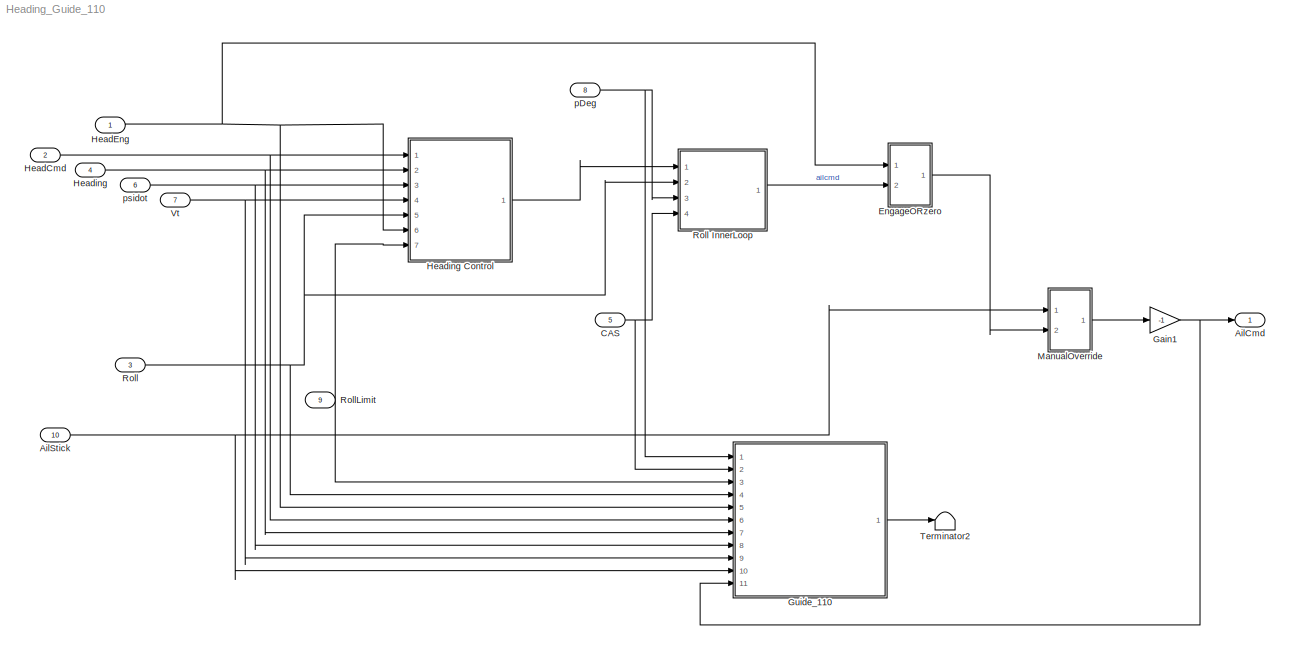
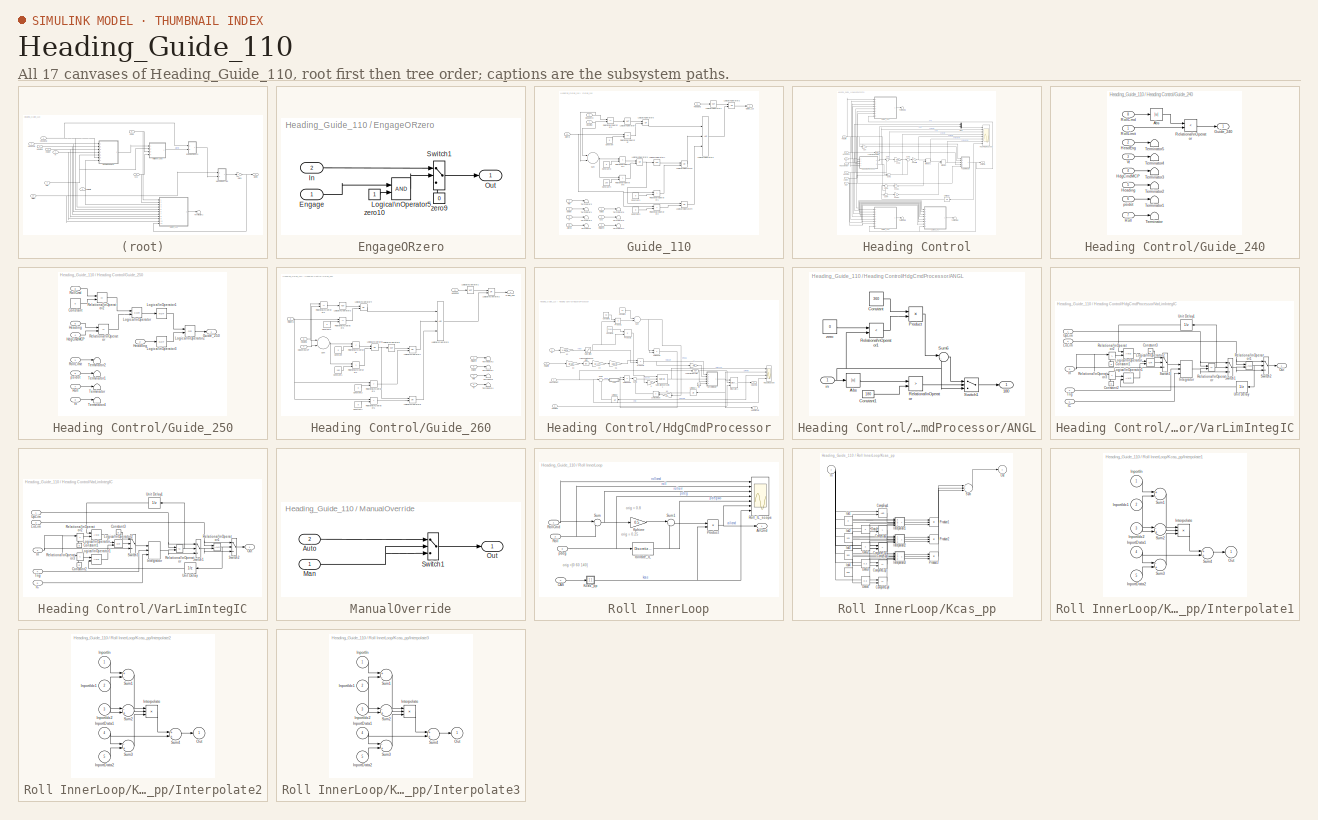
[diagram: thumbnail index - all 17 canvases of the model, root first then tree order]
MODEL Heading_Guide_110
KIND model
BLOCK [Outport] AilCmd
  IconDisplay = Port number
  SID = 327
BLOCK [Inport] AilStick
  IconDisplay = Port number
  OutDataTypeStr = double
  Port = 10
  SID = 10
BLOCK [Inport] CAS
  IconDisplay = Port number
  OutDataTypeStr = double
  Port = 5
  SID = 5
BLOCK [SubSystem] EngageORzero
  Ports = [2, 1]
  RequestExecContextInheritance = off
  SID = 11
  Variant = off
BLOCK [Inport] EngageORzero/Engage
  IconDisplay = Port number
  SID = 12
BLOCK [Inport] EngageORzero/In
  IconDisplay = Port number
  Port = 2
  SID = 13
BLOCK [Logic] EngageORzero/Logical\nOperator5
  AllPortsSameDT = off
  OutDataTypeStr = boolean
  Ports = [2, 1]
  SID = 14
BLOCK [Outport] EngageORzero/Out
  IconDisplay = Port number
  SID = 18
BLOCK [Switch] EngageORzero/Switch1
  InputSameDT = off
  SID = 15
  SaturateOnIntegerOverflow = off
  Threshold = 0.5
BLOCK [Constant] EngageORzero/zero10
  SID = 16
BLOCK [Constant] EngageORzero/zero9
  SID = 17
  Value = 0
BLOCK [Gain] Gain1
  Gain = -1
  SID = 19
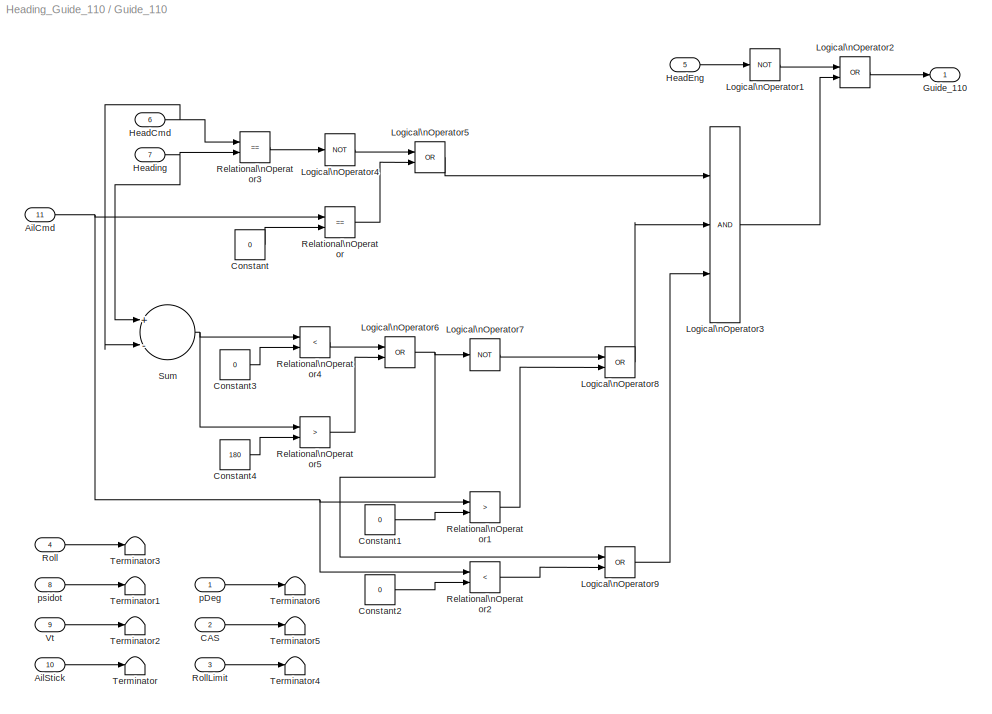
BLOCK [SubSystem] Guide_110
  Ports = [11, 1]
  RequestExecContextInheritance = off
  SID = 20
  TreatAsAtomicUnit = on
  Variant = off
BLOCK [Inport] Guide_110/AilCmd
  IconDisplay = Port number
  Port = 11
  SID = 31
BLOCK [Inport] Guide_110/AilStick
  IconDisplay = Port number
  Port = 10
  SID = 30
BLOCK [Inport] Guide_110/CAS
  IconDisplay = Port number
  Port = 2
  SID = 22
BLOCK [Constant] Guide_110/Constant
  SID = 32
  Value = 0
BLOCK [Constant] Guide_110/Constant1
  SID = 33
  Value = 0
BLOCK [Constant] Guide_110/Constant2
  SID = 34
  Value = 0
BLOCK [Constant] Guide_110/Constant3
  SID = 35
  Value = 0
BLOCK [Constant] Guide_110/Constant4
  SID = 36
  Value = 180
BLOCK [Outport] Guide_110/Guide_110
  IconDisplay = Port number
  SID = 60
BLOCK [Inport] Guide_110/HeadCmd
  IconDisplay = Port number
  Port = 6
  SID = 26
BLOCK [Inport] Guide_110/HeadEng
  IconDisplay = Port number
  Port = 5
  SID = 25
BLOCK [Inport] Guide_110/Heading
  IconDisplay = Port number
  Port = 7
  SID = 27
BLOCK [Logic] Guide_110/Logical\nOperator1
  AllPortsSameDT = off
  Operator = NOT
  OutDataTypeStr = boolean
  Ports = [1, 1]
  SID = 37
BLOCK [Logic] Guide_110/Logical\nOperator2
  AllPortsSameDT = off
  Operator = OR
  OutDataTypeStr = boolean
  Ports = [2, 1]
  SID = 38
BLOCK [Logic] Guide_110/Logical\nOperator3
  AllPortsSameDT = off
  Inputs = 3
  OutDataTypeStr = boolean
  Ports = [3, 1]
  SID = 39
BLOCK [Logic] Guide_110/Logical\nOperator4
  AllPortsSameDT = off
  Operator = NOT
  OutDataTypeStr = boolean
  Ports = [1, 1]
  SID = 40
BLOCK [Logic] Guide_110/Logical\nOperator5
  AllPortsSameDT = off
  Operator = OR
  OutDataTypeStr = boolean
  Ports = [2, 1]
  SID = 41
BLOCK [Logic] Guide_110/Logical\nOperator6
  AllPortsSameDT = off
  Operator = OR
  OutDataTypeStr = boolean
  Ports = [2, 1]
  SID = 42
BLOCK [Logic] Guide_110/Logical\nOperator7
  AllPortsSameDT = off
  Operator = NOT
  OutDataTypeStr = boolean
  Ports = [1, 1]
  SID = 43
BLOCK [Logic] Guide_110/Logical\nOperator8
  AllPortsSameDT = off
  Operator = OR
  OutDataTypeStr = boolean
  Ports = [2, 1]
  SID = 44
BLOCK [Logic] Guide_110/Logical\nOperator9
  AllPortsSameDT = off
  Operator = OR
  OutDataTypeStr = boolean
  Ports = [2, 1]
  SID = 45
BLOCK [RelationalOperator] Guide_110/Relational\nOperator
  InputSameDT = off
  Operator = ==
  OutDataTypeStr = boolean
  Ports = [2, 1]
  SID = 46
BLOCK [RelationalOperator] Guide_110/Relational\nOperator1
  InputSameDT = off
  Operator = >
  OutDataTypeStr = boolean
  Ports = [2, 1]
  SID = 47
BLOCK [RelationalOperator] Guide_110/Relational\nOperator2
  InputSameDT = off
  Operator = <
  OutDataTypeStr = boolean
  Ports = [2, 1]
  SID = 48
BLOCK [RelationalOperator] Guide_110/Relational\nOperator3
  InputSameDT = off
  Operator = ==
  OutDataTypeStr = boolean
  Ports = [2, 1]
  SID = 49
BLOCK [RelationalOperator] Guide_110/Relational\nOperator4
  InputSameDT = off
  Operator = <
  OutDataTypeStr = boolean
  Ports = [2, 1]
  SID = 50
BLOCK [RelationalOperator] Guide_110/Relational\nOperator5
  InputSameDT = off
  Operator = >
  OutDataTypeStr = boolean
  Ports = [2, 1]
  SID = 51
BLOCK [Inport] Guide_110/Roll
  IconDisplay = Port number
  Port = 4
  SID = 24
BLOCK [Inport] Guide_110/RollLimit
  IconDisplay = Port number
  Port = 3
  SID = 23
BLOCK [Sum] Guide_110/Sum
  InputSameDT = off
  Inputs = +-
  OutDataTypeStr = Inherit: Inherit via internal rule
  Ports = [2, 1]
  SID = 52
  SaturateOnIntegerOverflow = off
BLOCK [Terminator] Guide_110/Terminator
  SID = 53
BLOCK [Terminator] Guide_110/Terminator1
  SID = 54
BLOCK [Terminator] Guide_110/Terminator2
  SID = 55
BLOCK [Terminator] Guide_110/Terminator3
  SID = 56
BLOCK [Terminator] Guide_110/Terminator4
  SID = 57
BLOCK [Terminator] Guide_110/Terminator5
  SID = 58
BLOCK [Terminator] Guide_110/Terminator6
  SID = 59
BLOCK [Inport] Guide_110/Vt
  IconDisplay = Port number
  Port = 9
  SID = 29
BLOCK [Inport] Guide_110/pDeg
  IconDisplay = Port number
  SID = 21
BLOCK [Inport] Guide_110/psidot
  IconDisplay = Port number
  Port = 8
  SID = 28
BLOCK [Inport] HeadCmd
  IconDisplay = Port number
  OutDataTypeStr = double
  Port = 2
  SID = 2
BLOCK [Inport] HeadEng
  IconDisplay = Port number
  OutDataTypeStr = boolean
  SID = 1
BLOCK [Inport] Heading
  IconDisplay = Port number
  OutDataTypeStr = double
  Port = 4
  SID = 4
BLOCK [SubSystem] Heading Control
  Ports = [7, 1]
  RequestExecContextInheritance = off
  SID = 61
  TreatAsAtomicUnit = on
  Variant = off
BLOCK [SubSystem] Heading Control/Guide_240
  Ports = [8, 1]
  RequestExecContextInheritance = off
  SID = 69
  TreatAsAtomicUnit = on
  Variant = off
BLOCK [Abs] Heading Control/Guide_240/Abs
  SID = 78
  SaturateOnIntegerOverflow = off
BLOCK [Outport] Heading Control/Guide_240/Guide_240
  IconDisplay = Port number
  SID = 86
BLOCK [Inport] Heading Control/Guide_240/HdgCmdMCP
  IconDisplay = Port number
  Port = 4
  SID = 73
BLOCK [Inport] Heading Control/Guide_240/HeadEng
  IconDisplay = Port number
  Port = 2
  SID = 71
BLOCK [Inport] Heading Control/Guide_240/Heading
  IconDisplay = Port number
  Port = 5
  SID = 74
BLOCK [RelationalOperator] Heading Control/Guide_240/Relational\nOperator
  InputSameDT = off
  Operator = <
  OutDataTypeStr = boolean
  Ports = [2, 1]
  SID = 79
BLOCK [Inport] Heading Control/Guide_240/Roll
  IconDisplay = Port number
  Port = 7
  SID = 76
BLOCK [Inport] Heading Control/Guide_240/RollCmd
  IconDisplay = Port number
  Port = 8
  SID = 77
BLOCK [Inport] Heading Control/Guide_240/RollLimit
  IconDisplay = Port number
  SID = 70
BLOCK [Terminator] Heading Control/Guide_240/Terminator
  SID = 80
BLOCK [Terminator] Heading Control/Guide_240/Terminator1
  SID = 81
BLOCK [Terminator] Heading Control/Guide_240/Terminator2
  SID = 82
BLOCK [Terminator] Heading Control/Guide_240/Terminator3
  SID = 83
BLOCK [Terminator] Heading Control/Guide_240/Terminator4
  SID = 84
BLOCK [Terminator] Heading Control/Guide_240/Terminator5
  SID = 85
BLOCK [Inport] Heading Control/Guide_240/Vt
  IconDisplay = Port number
  Port = 3
  SID = 72
BLOCK [Inport] Heading Control/Guide_240/psidot
  IconDisplay = Port number
  Port = 6
  SID = 75
BLOCK [SubSystem] Heading Control/Guide_250
  Ports = [8, 1]
  RequestExecContextInheritance = off
  SID = 87
  TreatAsAtomicUnit = on
  Variant = off
BLOCK [Constant] Heading Control/Guide_250/Constant
  SID = 96
  Value = 0
BLOCK [Outport] Heading Control/Guide_250/Guide_250
  IconDisplay = Port number
  SID = 107
BLOCK [Inport] Heading Control/Guide_250/HdgCmdMCP
  IconDisplay = Port number
  Port = 4
  SID = 91
BLOCK [Inport] Heading Control/Guide_250/HeadEng
  IconDisplay = Port number
  Port = 2
  SID = 89
BLOCK [Inport] Heading Control/Guide_250/Heading
  IconDisplay = Port number
  Port = 5
  SID = 92
BLOCK [Logic] Heading Control/Guide_250/Logical\nOperator
  AllPortsSameDT = off
  Operator = XOR
  OutDataTypeStr = boolean
  Ports = [2, 1]
  SID = 97
BLOCK [Logic] Heading Control/Guide_250/Logical\nOperator1
  AllPortsSameDT = off
  Operator = NOT
  OutDataTypeStr = boolean
  Ports = [1, 1]
  SID = 98
BLOCK [Logic] Heading Control/Guide_250/Logical\nOperator2
  AllPortsSameDT = off
  Operator = OR
  OutDataTypeStr = boolean
  Ports = [2, 1]
  SID = 99
BLOCK [Logic] Heading Control/Guide_250/Logical\nOperator3
  AllPortsSameDT = off
  Operator = NOT
  OutDataTypeStr = boolean
  Ports = [1, 1]
  SID = 100
BLOCK [RelationalOperator] Heading Control/Guide_250/Relational\nOperator
  InputSameDT = off
  Operator = ==
  OutDataTypeStr = boolean
  Ports = [2, 1]
  SID = 101
BLOCK [RelationalOperator] Heading Control/Guide_250/Relational\nOperator2
  InputSameDT = off
  Operator = ==
  OutDataTypeStr = boolean
  Ports = [2, 1]
  SID = 102
BLOCK [Inport] Heading Control/Guide_250/Roll
  IconDisplay = Port number
  Port = 7
  SID = 94
BLOCK [Inport] Heading Control/Guide_250/RollCmd
  IconDisplay = Port number
  Port = 8
  SID = 95
BLOCK [Inport] Heading Control/Guide_250/RollLimit
  IconDisplay = Port number
  SID = 88
BLOCK [Terminator] Heading Control/Guide_250/Terminator
  SID = 103
BLOCK [Terminator] Heading Control/Guide_250/Terminator1
  SID = 104
BLOCK [Terminator] Heading Control/Guide_250/Terminator2
  SID = 105
BLOCK [Terminator] Heading Control/Guide_250/Terminator4
  SID = 106
BLOCK [Inport] Heading Control/Guide_250/Vt
  IconDisplay = Port number
  Port = 3
  SID = 90
BLOCK [Inport] Heading Control/Guide_250/psidot
  IconDisplay = Port number
  Port = 6
  SID = 93
BLOCK [SubSystem] Heading Control/Guide_260
  Ports = [8, 1]
  RequestExecContextInheritance = off
  SID = 108
  TreatAsAtomicUnit = on
  Variant = off
BLOCK [Constant] Heading Control/Guide_260/Constant
  SID = 117
  Value = 0
BLOCK [Constant] Heading Control/Guide_260/Constant1
  SID = 118
  Value = 180
BLOCK [Constant] Heading Control/Guide_260/Constant2
  SID = 119
  Value = 0
BLOCK [Constant] Heading Control/Guide_260/Constant3
  SID = 120
  Value = 0
BLOCK [Constant] Heading Control/Guide_260/Constant4
  SID = 121
  Value = 0
BLOCK [Outport] Heading Control/Guide_260/Guide_260
  IconDisplay = Port number
  SID = 142
BLOCK [Inport] Heading Control/Guide_260/HdgCmdMCP
  IconDisplay = Port number
  Port = 4
  SID = 112
BLOCK [Inport] Heading Control/Guide_260/HeadEng
  IconDisplay = Port number
  Port = 2
  SID = 110
BLOCK [Inport] Heading Control/Guide_260/Heading
  IconDisplay = Port number
  Port = 5
  SID = 113
BLOCK [Logic] Heading Control/Guide_260/Logical\nOperator
  AllPortsSameDT = off
  Operator = OR
  OutDataTypeStr = boolean
  Ports = [2, 1]
  SID = 122
BLOCK [Logic] Heading Control/Guide_260/Logical\nOperator1
  AllPortsSameDT = off
  Operator = NOT
  OutDataTypeStr = boolean
  Ports = [1, 1]
  SID = 123
BLOCK [Logic] Heading Control/Guide_260/Logical\nOperator2
  AllPortsSameDT = off
  Operator = OR
  OutDataTypeStr = boolean
  Ports = [2, 1]
  SID = 124
BLOCK [Logic] Heading Control/Guide_260/Logical\nOperator3
  AllPortsSameDT = off
  Operator = NOT
  OutDataTypeStr = boolean
  Ports = [1, 1]
  SID = 125
BLOCK [Logic] Heading Control/Guide_260/Logical\nOperator4
  AllPortsSameDT = off
  Operator = OR
  OutDataTypeStr = boolean
  Ports = [2, 1]
  SID = 126
BLOCK [Logic] Heading Control/Guide_260/Logical\nOperator5
  AllPortsSameDT = off
  Inputs = 3
  OutDataTypeStr = boolean
  Ports = [3, 1]
  SID = 127
BLOCK [Logic] Heading Control/Guide_260/Logical\nOperator6
  AllPortsSameDT = off
  Operator = NOT
  OutDataTypeStr = boolean
  Ports = [1, 1]
  SID = 128
BLOCK [Logic] Heading Control/Guide_260/Logical\nOperator7
  AllPortsSameDT = off
  Operator = OR
  OutDataTypeStr = boolean
  Ports = [2, 1]
  SID = 129
BLOCK [Logic] Heading Control/Guide_260/Logical\nOperator8
  AllPortsSameDT = off
  Operator = OR
  OutDataTypeStr = boolean
  Ports = [2, 1]
  SID = 130
BLOCK [RelationalOperator] Heading Control/Guide_260/Relational\nOperator
  InputSameDT = off
  Operator = <
  OutDataTypeStr = boolean
  Ports = [2, 1]
  SID = 131
BLOCK [RelationalOperator] Heading Control/Guide_260/Relational\nOperator1
  InputSameDT = off
  Operator = >
  OutDataTypeStr = boolean
  Ports = [2, 1]
  SID = 132
BLOCK [RelationalOperator] Heading Control/Guide_260/Relational\nOperator2
  InputSameDT = off
  Operator = ==
  OutDataTypeStr = boolean
  Ports = [2, 1]
  SID = 133
BLOCK [RelationalOperator] Heading Control/Guide_260/Relational\nOperator3
  InputSameDT = off
  Operator = ==
  OutDataTypeStr = boolean
  Ports = [2, 1]
  SID = 134
BLOCK [RelationalOperator] Heading Control/Guide_260/Relational\nOperator4
  InputSameDT = off
  Operator = >
  OutDataTypeStr = boolean
  Ports = [2, 1]
  SID = 135
BLOCK [RelationalOperator] Heading Control/Guide_260/Relational\nOperator5
  InputSameDT = off
  Operator = <
  OutDataTypeStr = boolean
  Ports = [2, 1]
  SID = 136
BLOCK [Inport] Heading Control/Guide_260/Roll
  IconDisplay = Port number
  Port = 7
  SID = 115
BLOCK [Inport] Heading Control/Guide_260/RollCmd
  IconDisplay = Port number
  Port = 8
  SID = 116
BLOCK [Inport] Heading Control/Guide_260/RollLimit
  IconDisplay = Port number
  SID = 109
BLOCK [Sum] Heading Control/Guide_260/Sum
  InputSameDT = off
  Inputs = +-
  OutDataTypeStr = Inherit: Inherit via internal rule
  Ports = [2, 1]
  SID = 137
  SaturateOnIntegerOverflow = off
BLOCK [Terminator] Heading Control/Guide_260/Terminator
  SID = 138
BLOCK [Terminator] Heading Control/Guide_260/Terminator1
  SID = 139
BLOCK [Terminator] Heading Control/Guide_260/Terminator2
  SID = 140
BLOCK [Terminator] Heading Control/Guide_260/Terminator4
  SID = 141
BLOCK [Inport] Heading Control/Guide_260/Vt
  IconDisplay = Port number
  Port = 3
  SID = 111
BLOCK [Inport] Heading Control/Guide_260/psidot
  IconDisplay = Port number
  Port = 6
  SID = 114
BLOCK [Inport] Heading Control/HdgCmdMCP
  IconDisplay = Port number
  SID = 62
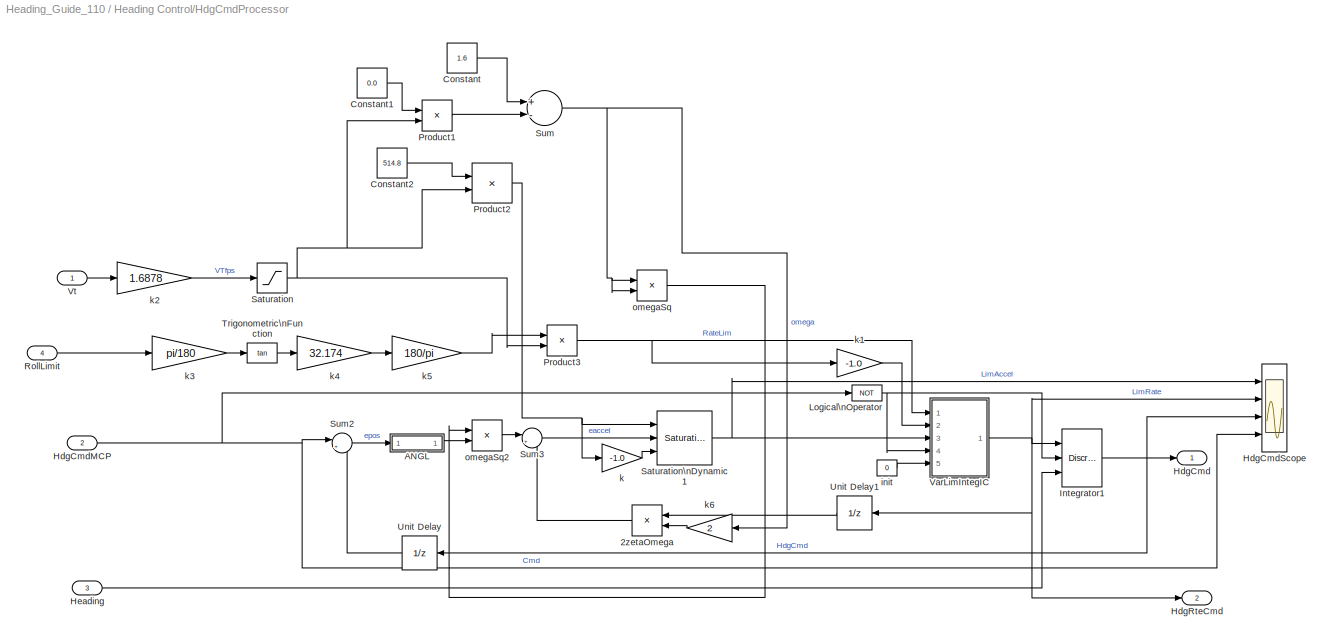
BLOCK [SubSystem] Heading Control/HdgCmdProcessor
  Ports = [4, 2]
  RequestExecContextInheritance = off
  SID = 143
  Variant = off
BLOCK [Product] Heading Control/HdgCmdProcessor/2zetaOmega
  InputSameDT = off
  OutDataTypeStr = Inherit: Inherit via internal rule
  Ports = [2, 1]
  SID = 148
  SaturateOnIntegerOverflow = off
BLOCK [SubSystem] Heading Control/HdgCmdProcessor/ANGL
  Ports = [1, 1]
  RequestExecContextInheritance = off
  SID = 149
  Variant = off
BLOCK [Outport] Heading Control/HdgCmdProcessor/ANGL/180
  IconDisplay = Port number
  SID = 160
BLOCK [Abs] Heading Control/HdgCmdProcessor/ANGL/Abs
  SID = 151
  SaturateOnIntegerOverflow = off
BLOCK [Constant] Heading Control/HdgCmdProcessor/ANGL/Constant
  SID = 152
  Value = 360
BLOCK [Constant] Heading Control/HdgCmdProcessor/ANGL/Constant1
  SID = 153
  Value = 180
BLOCK [Product] Heading Control/HdgCmdProcessor/ANGL/Product
  InputSameDT = off
  OutDataTypeStr = Inherit: Inherit via internal rule
  Ports = [2, 1]
  SID = 154
  SaturateOnIntegerOverflow = off
BLOCK [RelationalOperator] Heading Control/HdgCmdProcessor/ANGL/Relational\nOperator
  InputSameDT = off
  Operator = >
  Ports = [2, 1]
  SID = 155
BLOCK [RelationalOperator] Heading Control/HdgCmdProcessor/ANGL/Relational\nOperator1
  InputSameDT = off
  Operator = <
  OutDataTypeStr = boolean
  Ports = [2, 1]
  SID = 156
BLOCK [Sum] Heading Control/HdgCmdProcessor/ANGL/Sum6
  IconShape = round
  InputSameDT = off
  Inputs = |-+
  OutDataTypeStr = Inherit: Inherit via internal rule
  Ports = [2, 1]
  SID = 157
BLOCK [Switch] Heading Control/HdgCmdProcessor/ANGL/Switch1
  InputSameDT = off
  SID = 158
  Threshold = 0.1
BLOCK [Inport] Heading Control/HdgCmdProcessor/ANGL/in
  IconDisplay = Port number
  SID = 150
BLOCK [Constant] Heading Control/HdgCmdProcessor/ANGL/zero
  SID = 159
  Value = 0
BLOCK [Constant] Heading Control/HdgCmdProcessor/Constant
  SID = 161
  Value = 1.6
BLOCK [Constant] Heading Control/HdgCmdProcessor/Constant1
  SID = 162
  Value = 0.0
BLOCK [Constant] Heading Control/HdgCmdProcessor/Constant2
  SID = 163
  Value = 514.8
BLOCK [Outport] Heading Control/HdgCmdProcessor/HdgCmd
  IconDisplay = Port number
  SID = 207
BLOCK [Inport] Heading Control/HdgCmdProcessor/HdgCmdMCP
  IconDisplay = Port number
  Port = 2
  SID = 145
BLOCK [Scope] Heading Control/HdgCmdProcessor/HdgCmdScope
  NumInputPorts = 4
  Ports = [4]
  SID = 164
  ScopeSpecificationString = C++SS(StrPVP('Location','[661, 662, 1361, 1168]'),StrPVP('Open','off'),MxPVP('AxesTitles',24,'struct(''axes1'',''%<SignalLabel>'',''axes2'',''%<SignalLabel>'',''axes3'',''%<SignalLabel>'',''axes4'',''%<SignalLabel>'')'),StrPVP('YMin','-2~-4~-40~-40'),StrPVP('YMax','2~4~40~40'),StrPVP('SaveName','ScopeData6'),StrPVP('DataFormat','StructureWithTime'),StrPVP('LimitDataPoints','off'),StrPVP('BlockPara...<+81ch>
BLOCK [Outport] Heading Control/HdgCmdProcessor/HdgRteCmd
  IconDisplay = Port number
  Port = 2
  SID = 208
BLOCK [Inport] Heading Control/HdgCmdProcessor/Heading
  IconDisplay = Port number
  Port = 3
  SID = 146
BLOCK [DiscreteIntegrator] Heading Control/HdgCmdProcessor/Integrator1
  ExternalReset = level
  ICPrevOutput = DiscIntNeverNeededParam
  ICPrevScaledInput = DiscIntNeverNeededParam
  InitialConditionSource = external
  Ports = [3, 1]
  SID = 165
  SampleTime = 1.0
BLOCK [Logic] Heading Control/HdgCmdProcessor/Logical\nOperator
  AllPortsSameDT = off
  Operator = NOT
  OutDataTypeStr = boolean
  Ports = [1, 1]
  SID = 166
BLOCK [Product] Heading Control/HdgCmdProcessor/Product1
  InputSameDT = off
  OutDataTypeStr = Inherit: Inherit via internal rule
  Ports = [2, 1]
  SID = 167
  SaturateOnIntegerOverflow = off
BLOCK [Product] Heading Control/HdgCmdProcessor/Product2
  InputSameDT = off
  Inputs = */
  OutDataTypeStr = Inherit: Inherit via internal rule
  Ports = [2, 1]
  SID = 168
  SaturateOnIntegerOverflow = off
BLOCK [Product] Heading Control/HdgCmdProcessor/Product3
  InputSameDT = off
  Inputs = /*
  OutDataTypeStr = Inherit: Inherit via internal rule
  Ports = [2, 1]
  SID = 169
  SaturateOnIntegerOverflow = off
BLOCK [Inport] Heading Control/HdgCmdProcessor/RollLimit
  IconDisplay = Port number
  Port = 4
  SID = 147
BLOCK [Saturate] Heading Control/HdgCmdProcessor/Saturation
  InputPortMap = u0
  LowerLimit = 0.0001
  Ports = [1, 1]
  SID = 170
  UpperLimit = 1000
BLOCK [Reference] Heading Control/HdgCmdProcessor/Saturation\nDynamic1  REF=simulink/Discontinuities/Saturation\nDynamic
  DoSatur = off
  LockScale = off
  OutDataType = fixdt(1, 16)
  OutDataTypeStr = Inherit: Same as second input
  OutMax = []
  OutMin = []
  OutScaling = 2^-10
  OutputDataTypeScalingMode = Same as second input
  Ports = [3, 1]
  RndMeth = Floor
  SID = 171
  SourceBlock = simulink/Discontinuities/Saturation\nDynamic
  SourceType = Saturation Dynamic
BLOCK [Sum] Heading Control/HdgCmdProcessor/Sum
  InputSameDT = off
  Inputs = +-
  OutDataTypeStr = Inherit: Inherit via internal rule
  Ports = [2, 1]
  SID = 172
  SaturateOnIntegerOverflow = off
BLOCK [Sum] Heading Control/HdgCmdProcessor/Sum2
  IconShape = round
  InputSameDT = off
  Inputs = |+-
  OutDataTypeStr = Inherit: Inherit via internal rule
  Ports = [2, 1]
  SID = 173
  SaturateOnIntegerOverflow = off
BLOCK [Sum] Heading Control/HdgCmdProcessor/Sum3
  IconShape = round
  InputSameDT = off
  Inputs = |+-
  OutDataTypeStr = Inherit: Inherit via internal rule
  Ports = [2, 1]
  SID = 174
  SaturateOnIntegerOverflow = off
BLOCK [Trigonometry] Heading Control/HdgCmdProcessor/Trigonometric\nFunction
  Operator = tan
  Ports = [1, 1]
  SID = 175
BLOCK [UnitDelay] Heading Control/HdgCmdProcessor/Unit Delay
  InputProcessing = Elements as channels (sample based)
  SID = 329
  SampleTime = -1
BLOCK [UnitDelay] Heading Control/HdgCmdProcessor/Unit Delay1
  InputProcessing = Elements as channels (sample based)
  SID = 330
  SampleTime = -1
BLOCK [SubSystem] Heading Control/HdgCmdProcessor/VarLimIntegIC
  Ports = [5, 1]
  RequestExecContextInheritance = off
  SID = 176
  Variant = off
BLOCK [Constant] Heading Control/HdgCmdProcessor/VarLimIntegIC/Constant1
  SID = 182
  Value = 0
BLOCK [Constant] Heading Control/HdgCmdProcessor/VarLimIntegIC/Constant2
  SID = 183
  Value = 0
BLOCK [Constant] Heading Control/HdgCmdProcessor/VarLimIntegIC/Constant3
  SID = 184
  Value = 0
BLOCK [Inport] Heading Control/HdgCmdProcessor/VarLimIntegIC/IC
  IconDisplay = Port number
  Port = 5
  SID = 181
BLOCK [Inport] Heading Control/HdgCmdProcessor/VarLimIntegIC/In
  IconDisplay = Port number
  Port = 3
  SID = 179
BLOCK [DiscreteIntegrator] Heading Control/HdgCmdProcessor/VarLimIntegIC/Integrator
  ExternalReset = level
  ICPrevOutput = DiscIntNeverNeededParam
  ICPrevScaledInput = DiscIntNeverNeededParam
  InitialConditionSource = external
  Ports = [3, 1]
  SID = 185
  SampleTime = 1.0
BLOCK [Inport] Heading Control/HdgCmdProcessor/VarLimIntegIC/LoLim
  IconDisplay = Port number
  Port = 2
  SID = 178
BLOCK [Logic] Heading Control/HdgCmdProcessor/VarLimIntegIC/Logical\nOperator
  AllPortsSameDT = off
  Ports = [2, 1]
  SID = 186
BLOCK [Logic] Heading Control/HdgCmdProcessor/VarLimIntegIC/Logical\nOperator1
  AllPortsSameDT = off
  Ports = [2, 1]
  SID = 187
BLOCK [Logic] Heading Control/HdgCmdProcessor/VarLimIntegIC/Logical\nOperator2
  AllPortsSameDT = off
  Operator = OR
  Ports = [2, 1]
  SID = 188
BLOCK [Outport] Heading Control/HdgCmdProcessor/VarLimIntegIC/Out
  IconDisplay = Port number
  SID = 196
BLOCK [RelationalOperator] Heading Control/HdgCmdProcessor/VarLimIntegIC/Relational\nOperator
  InputSameDT = off
  Operator = <=
  Ports = [2, 1]
  SID = 189
BLOCK [RelationalOperator] Heading Control/HdgCmdProcessor/VarLimIntegIC/Relational\nOperator1
  InputSameDT = off
  Ports = [2, 1]
  SID = 190
BLOCK [RelationalOperator] Heading Control/HdgCmdProcessor/VarLimIntegIC/Relational\nOperator2
  InputSameDT = off
  Operator = >
  Ports = [2, 1]
  SID = 191
BLOCK [RelationalOperator] Heading Control/HdgCmdProcessor/VarLimIntegIC/Relational\nOperator3
  InputSameDT = off
  Operator = <
  Ports = [2, 1]
  SID = 192
BLOCK [Switch] Heading Control/HdgCmdProcessor/VarLimIntegIC/Switch1
  SID = 193
  Threshold = 0.5
BLOCK [Switch] Heading Control/HdgCmdProcessor/VarLimIntegIC/Switch2
  SID = 194
  Threshold = 0.5
BLOCK [Switch] Heading Control/HdgCmdProcessor/VarLimIntegIC/Switch3
  SID = 195
  Threshold = 0.5
BLOCK [Inport] Heading Control/HdgCmdProcessor/VarLimIntegIC/Trig
  IconDisplay = Port number
  Port = 4
  SID = 180
BLOCK [UnitDelay] Heading Control/HdgCmdProcessor/VarLimIntegIC/Unit Delay
  InputProcessing = Elements as channels (sample based)
  SID = 331
  SampleTime = -1
BLOCK [UnitDelay] Heading Control/HdgCmdProcessor/VarLimIntegIC/Unit Delay1
  InputProcessing = Elements as channels (sample based)
  SID = 332
  SampleTime = -1
BLOCK [Inport] Heading Control/HdgCmdProcessor/VarLimIntegIC/UpLim
  IconDisplay = Port number
  SID = 177
BLOCK [Inport] Heading Control/HdgCmdProcessor/Vt
  IconDisplay = Port number
  SID = 144
BLOCK [Constant] Heading Control/HdgCmdProcessor/init
  SID = 197
  Value = 0
BLOCK [Gain] Heading Control/HdgCmdProcessor/k
  Gain = -1.0
  OutDataTypeStr = Inherit: Inherit via internal rule
  ParamDataTypeStr = Inherit: Inherit via internal rule
  SID = 198
  SaturateOnIntegerOverflow = off
BLOCK [Gain] Heading Control/HdgCmdProcessor/k1
  Gain = -1.0
  OutDataTypeStr = Inherit: Inherit via internal rule
  ParamDataTypeStr = Inherit: Inherit via internal rule
  SID = 199
  SaturateOnIntegerOverflow = off
BLOCK [Gain] Heading Control/HdgCmdProcessor/k2
  Gain = 1.6878
  OutDataTypeStr = Inherit: Inherit via internal rule
  ParamDataTypeStr = Inherit: Inherit via internal rule
  SID = 200
  SaturateOnIntegerOverflow = off
BLOCK [Gain] Heading Control/HdgCmdProcessor/k3
  Gain = pi/180
  OutDataTypeStr = Inherit: Inherit via internal rule
  ParamDataTypeStr = Inherit: Inherit via internal rule
  SID = 201
  SaturateOnIntegerOverflow = off
BLOCK [Gain] Heading Control/HdgCmdProcessor/k4
  Gain = 32.174
  OutDataTypeStr = Inherit: Inherit via internal rule
  ParamDataTypeStr = Inherit: Inherit via internal rule
  SID = 202
  SaturateOnIntegerOverflow = off
BLOCK [Gain] Heading Control/HdgCmdProcessor/k5
  Gain = 180/pi
  OutDataTypeStr = Inherit: Inherit via internal rule
  ParamDataTypeStr = Inherit: Inherit via internal rule
  SID = 203
  SaturateOnIntegerOverflow = off
BLOCK [Gain] Heading Control/HdgCmdProcessor/k6
  Gain = 2
  OutDataTypeStr = Inherit: Inherit via internal rule
  ParamDataTypeStr = Inherit: Inherit via internal rule
  SID = 204
  SaturateOnIntegerOverflow = off
BLOCK [Product] Heading Control/HdgCmdProcessor/omegaSq
  InputSameDT = off
  OutDataTypeStr = Inherit: Inherit via internal rule
  Ports = [2, 1]
  SID = 205
  SaturateOnIntegerOverflow = off
BLOCK [Product] Heading Control/HdgCmdProcessor/omegaSq2
  InputSameDT = off
  OutDataTypeStr = Inherit: Inherit via internal rule
  Ports = [2, 1]
  SID = 206
  SaturateOnIntegerOverflow = off
BLOCK [Scope] Heading Control/HdgRollCmdScope
  NumInputPorts = 8
  Ports = [8]
  SID = 209
  ScopeSpecificationString = C++SS(StrPVP('Location','[803, 84, 1609, 1060]'),StrPVP('Open','off'),MxPVP('AxesTitles',24,'struct(''axes1'',''HdgCmdMCP,  psic'',''axes2'',''%<SignalLabel>'',''axes3'',''%<SignalLabel>'',''axes4'',''%<SignalLabel>'',''axes5'',''%<SignalLabel>'',''axes6'',''%<SignalLabel>'',''axes7'',''%<SignalLabel>'',''axes8'',''%<SignalLabel>'')'),StrPVP('YMin','-30~-30~-10~-10~-4~-10~0~-5'),StrPVP('YMax','30~...<+223ch>
BLOCK [Inport] Heading Control/HeadEng
  IconDisplay = Port number
  Port = 6
  SID = 67
BLOCK [Inport] Heading Control/Heading
  IconDisplay = Port number
  Port = 2
  SID = 63
BLOCK [Gain] Heading Control/Khdg
  Gain = 0.05
  OutDataTypeStr = Inherit: Inherit via internal rule
  ParamDataTypeStr = Inherit: Inherit via internal rule
  SID = 210
  SaturateOnIntegerOverflow = off
BLOCK [Gain] Heading Control/Khdg1
  OutDataTypeStr = Inherit: Inherit via internal rule
  ParamDataTypeStr = Inherit: Inherit via internal rule
  SID = 211
  SaturateOnIntegerOverflow = off
BLOCK [Gain] Heading Control/Khdg2
  OutDataTypeStr = Inherit: Inherit via internal rule
  ParamDataTypeStr = Inherit: Inherit via internal rule
  SID = 212
  SaturateOnIntegerOverflow = off
BLOCK [Gain] Heading Control/Khdgrte
  Gain = 3
  OutDataTypeStr = Inherit: Inherit via internal rule
  ParamDataTypeStr = Inherit: Inherit via internal rule
  SID = 213
  SaturateOnIntegerOverflow = off
BLOCK [Logic] Heading Control/Logical\nOperator
  AllPortsSameDT = off
  Operator = NOT
  OutDataTypeStr = boolean
  Ports = [1, 1]
  SID = 214
BLOCK [MinMax] Heading Control/MinMax
  InputSameDT = off
  Inputs = 2
  Ports = [2, 1]
  SID = 215
  SaturateOnIntegerOverflow = off
BLOCK [MinMax] Heading Control/MinMax1
  Function = max
  InputSameDT = off
  Inputs = 2
  Ports = [2, 1]
  SID = 216
  SaturateOnIntegerOverflow = off
BLOCK [Mux] Heading Control/Mux
  DisplayOption = bar
  Inputs = 2
  Ports = [2, 1]
  SID = 217
BLOCK [Inport] Heading Control/Roll
  IconDisplay = Port number
  Port = 5
  SID = 66
BLOCK [Outport] Heading Control/RollCmd
  IconDisplay = Port number
  SID = 248
BLOCK [Inport] Heading Control/RollLimit
  IconDisplay = Port number
  Port = 7
  SID = 68
BLOCK [Sum] Heading Control/Sum
  IconShape = round
  InputSameDT = off
  Inputs = |+-
  OutDataTypeStr = Inherit: Inherit via internal rule
  Ports = [2, 1]
  SID = 218
  SaturateOnIntegerOverflow = off
BLOCK [Sum] Heading Control/Sum1
  IconShape = round
  InputSameDT = off
  Inputs = |++
  OutDataTypeStr = Inherit: Inherit via internal rule
  Ports = [2, 1]
  SID = 219
  SaturateOnIntegerOverflow = off
BLOCK [Sum] Heading Control/Sum2
  IconShape = round
  InputSameDT = off
  Inputs = |+-
  OutDataTypeStr = Inherit: Inherit via internal rule
  Ports = [2, 1]
  SID = 220
  SaturateOnIntegerOverflow = off
BLOCK [Sum] Heading Control/Sum3
  IconShape = round
  InputSameDT = off
  Inputs = |--
  OutDataTypeStr = Inherit: Inherit via internal rule
  Ports = [2, 1]
  SID = 221
  SaturateOnIntegerOverflow = off
BLOCK [Sum] Heading Control/Sum4
  IconShape = round
  InputSameDT = off
  Inputs = +-|
  OutDataTypeStr = Inherit: Inherit via internal rule
  Ports = [2, 1]
  SID = 222
  SaturateOnIntegerOverflow = off
BLOCK [Terminator] Heading Control/Terminator1
  SID = 223
BLOCK [Terminator] Heading Control/Terminator2
  SID = 224
BLOCK [Terminator] Heading Control/Terminator5
  SID = 225
BLOCK [UnitDelay] Heading Control/Unit Delay
  InputProcessing = Elements as channels (sample based)
  SID = 328
  SampleTime = -1
BLOCK [SubSystem] Heading Control/VarLimIntegIC
  Ports = [5, 1]
  RequestExecContextInheritance = off
  SID = 226
  Variant = off
BLOCK [Constant] Heading Control/VarLimIntegIC/Constant1
  SID = 232
  Value = 0
BLOCK [Constant] Heading Control/VarLimIntegIC/Constant2
  SID = 233
  Value = 0
BLOCK [Constant] Heading Control/VarLimIntegIC/Constant3
  SID = 234
  Value = 0
BLOCK [Inport] Heading Control/VarLimIntegIC/IC
  IconDisplay = Port number
  Port = 5
  SID = 231
BLOCK [Inport] Heading Control/VarLimIntegIC/In
  IconDisplay = Port number
  Port = 3
  SID = 229
BLOCK [DiscreteIntegrator] Heading Control/VarLimIntegIC/Integrator
  ExternalReset = level
  ICPrevOutput = DiscIntNeverNeededParam
  ICPrevScaledInput = DiscIntNeverNeededParam
  InitialConditionSource = external
  Ports = [3, 1]
  SID = 235
  SampleTime = 1.0
BLOCK [Inport] Heading Control/VarLimIntegIC/LoLim
  IconDisplay = Port number
  Port = 2
  SID = 228
BLOCK [Logic] Heading Control/VarLimIntegIC/Logical\nOperator
  AllPortsSameDT = off
  Ports = [2, 1]
  SID = 236
BLOCK [Logic] Heading Control/VarLimIntegIC/Logical\nOperator1
  AllPortsSameDT = off
  Ports = [2, 1]
  SID = 237
BLOCK [Logic] Heading Control/VarLimIntegIC/Logical\nOperator2
  AllPortsSameDT = off
  Operator = OR
  Ports = [2, 1]
  SID = 238
BLOCK [Outport] Heading Control/VarLimIntegIC/Out
  IconDisplay = Port number
  SID = 246
BLOCK [RelationalOperator] Heading Control/VarLimIntegIC/Relational\nOperator
  InputSameDT = off
  Operator = <=
  Ports = [2, 1]
  SID = 239
BLOCK [RelationalOperator] Heading Control/VarLimIntegIC/Relational\nOperator1
  InputSameDT = off
  Ports = [2, 1]
  SID = 240
BLOCK [RelationalOperator] Heading Control/VarLimIntegIC/Relational\nOperator2
  InputSameDT = off
  Operator = >
  Ports = [2, 1]
  SID = 241
BLOCK [RelationalOperator] Heading Control/VarLimIntegIC/Relational\nOperator3
  InputSameDT = off
  Operator = <
  Ports = [2, 1]
  SID = 242
BLOCK [Switch] Heading Control/VarLimIntegIC/Switch1
  SID = 243
  Threshold = 0.5
BLOCK [Switch] Heading Control/VarLimIntegIC/Switch2
  SID = 244
  Threshold = 0.5
BLOCK [Switch] Heading Control/VarLimIntegIC/Switch3
  SID = 245
  Threshold = 0.5
BLOCK [Inport] Heading Control/VarLimIntegIC/Trig
  IconDisplay = Port number
  Port = 4
  SID = 230
BLOCK [UnitDelay] Heading Control/VarLimIntegIC/Unit Delay
  InputProcessing = Elements as channels (sample based)
  SID = 333
  SampleTime = -1
BLOCK [UnitDelay] Heading Control/VarLimIntegIC/Unit Delay1
  InputProcessing = Elements as channels (sample based)
  SID = 334
  SampleTime = -1
BLOCK [Inport] Heading Control/VarLimIntegIC/UpLim
  IconDisplay = Port number
  SID = 227
BLOCK [Inport] Heading Control/Vt
  IconDisplay = Port number
  Port = 4
  SID = 65
BLOCK [Inport] Heading Control/psidot
  IconDisplay = Port number
  Port = 3
  SID = 64
BLOCK [Gain] Heading Control/sgn
  Gain = -1
  OutDataTypeStr = Inherit: Inherit via internal rule
  ParamDataTypeStr = Inherit: Inherit via internal rule
  SID = 247
  SaturateOnIntegerOverflow = off
BLOCK [SubSystem] ManualOverride
  Ports = [2, 1]
  RequestExecContextInheritance = off
  SID = 249
  Variant = off
BLOCK [Inport] ManualOverride/Auto
  IconDisplay = Port number
  Port = 2
  SID = 251
BLOCK [Inport] ManualOverride/Man
  IconDisplay = Port number
  SID = 250
BLOCK [Outport] ManualOverride/Out
  IconDisplay = Port number
  SID = 253
BLOCK [Switch] ManualOverride/Switch1
  Criteria = u2 ~= 0
  InputSameDT = off
  SID = 252
  SaturateOnIntegerOverflow = off
  Threshold = 0.5
BLOCK [Inport] Roll
  IconDisplay = Port number
  OutDataTypeStr = double
  Port = 3
  SID = 3
BLOCK [SubSystem] Roll InnerLoop
  Ports = [4, 1]
  RequestExecContextInheritance = off
  SID = 254
  TreatAsAtomicUnit = on
  Variant = off
BLOCK [Outport] Roll InnerLoop/AilCmd
  IconDisplay = Port number
  SID = 322
BLOCK [Inport] Roll InnerLoop/CAS
  IconDisplay = Port number
  Port = 4
  SID = 258
BLOCK [SubSystem] Roll InnerLoop/Kcas_pp
  Ports = [1, 1]
  RequestExecContextInheritance = off
  SID = 259
  TreatAsAtomicUnit = on
  Variant = off
BLOCK [RelationalOperator] Roll InnerLoop/Kcas_pp/CompInfEq2
  Operator = <=
  Ports = [2, 1]
  SID = 261
BLOCK [RelationalOperator] Roll InnerLoop/Kcas_pp/CompInfEq3
  Operator = <=
  Ports = [2, 1]
  SID = 262
BLOCK [RelationalOperator] Roll InnerLoop/Kcas_pp/CompInfEq4
  Operator = <=
  Ports = [2, 1]
  SID = 263
BLOCK [RelationalOperator] Roll InnerLoop/Kcas_pp/CompSup1
  Ports = [2, 1]
  SID = 264
BLOCK [RelationalOperator] Roll InnerLoop/Kcas_pp/CompSup2
  Operator = >
  Ports = [2, 1]
  SID = 265
BLOCK [RelationalOperator] Roll InnerLoop/Kcas_pp/CompSup3
  Operator = >
  Ports = [2, 1]
  SID = 266
BLOCK [Constant] Roll InnerLoop/Kcas_pp/Data1
  SID = 267
BLOCK [Constant] Roll InnerLoop/Kcas_pp/Data2
  SID = 268
BLOCK [Constant] Roll InnerLoop/Kcas_pp/Data3
  SID = 269
  Value = 0.3
BLOCK [Constant] Roll InnerLoop/Kcas_pp/Data4
  SID = 270
  Value = 0.3
BLOCK [Constant] Roll InnerLoop/Kcas_pp/Idx1
  SID = 271
  Value = 0
BLOCK [Constant] Roll InnerLoop/Kcas_pp/Idx2
  SID = 272
  Value = 120
BLOCK [Constant] Roll InnerLoop/Kcas_pp/Idx3
  SID = 273
  Value = 350
BLOCK [Constant] Roll InnerLoop/Kcas_pp/Idx4
  SID = 274
  Value = 500
BLOCK [Inport] Roll InnerLoop/Kcas_pp/In
  IconDisplay = Port number
  SID = 260
BLOCK [SubSystem] Roll InnerLoop/Kcas_pp/Interpolate1
  Ports = [5, 1]
  RequestExecContextInheritance = off
  SID = 275
  Variant = off
BLOCK [Inport] Roll InnerLoop/Kcas_pp/Interpolate1/InportData1
  IconDisplay = Port number
  Port = 4
  SID = 279
BLOCK [Inport] Roll InnerLoop/Kcas_pp/Interpolate1/InportData2
  IconDisplay = Port number
  Port = 5
  SID = 280
BLOCK [Inport] Roll InnerLoop/Kcas_pp/Interpolate1/InportIdx1
  IconDisplay = Port number
  Port = 2
  SID = 277
BLOCK [Inport] Roll InnerLoop/Kcas_pp/Interpolate1/InportIdx2
  IconDisplay = Port number
  Port = 3
  SID = 278
BLOCK [Inport] Roll InnerLoop/Kcas_pp/Interpolate1/InportIn
  IconDisplay = Port number
  SID = 276
BLOCK [Product] Roll InnerLoop/Kcas_pp/Interpolate1/Interpolate
  Inputs = */*
  Ports = [3, 1]
  SID = 281
BLOCK [Outport] Roll InnerLoop/Kcas_pp/Interpolate1/Out
  IconDisplay = Port number
  SID = 286
BLOCK [Sum] Roll InnerLoop/Kcas_pp/Interpolate1/Sum1
  Inputs = +-
  Ports = [2, 1]
  SID = 282
BLOCK [Sum] Roll InnerLoop/Kcas_pp/Interpolate1/Sum2
  Inputs = -+
  Ports = [2, 1]
  SID = 283
BLOCK [Sum] Roll InnerLoop/Kcas_pp/Interpolate1/Sum3
  Inputs = -+
  Ports = [2, 1]
  SID = 284
BLOCK [Sum] Roll InnerLoop/Kcas_pp/Interpolate1/Sum4
  Ports = [2, 1]
  SID = 285
BLOCK [SubSystem] Roll InnerLoop/Kcas_pp/Interpolate2
  Ports = [5, 1]
  RequestExecContextInheritance = off
  SID = 287
  Variant = off
BLOCK [Inport] Roll InnerLoop/Kcas_pp/Interpolate2/InportData1
  IconDisplay = Port number
  Port = 4
  SID = 291
BLOCK [Inport] Roll InnerLoop/Kcas_pp/Interpolate2/InportData2
  IconDisplay = Port number
  Port = 5
  SID = 292
BLOCK [Inport] Roll InnerLoop/Kcas_pp/Interpolate2/InportIdx1
  IconDisplay = Port number
  Port = 2
  SID = 289
BLOCK [Inport] Roll InnerLoop/Kcas_pp/Interpolate2/InportIdx2
  IconDisplay = Port number
  Port = 3
  SID = 290
BLOCK [Inport] Roll InnerLoop/Kcas_pp/Interpolate2/InportIn
  IconDisplay = Port number
  SID = 288
BLOCK [Product] Roll InnerLoop/Kcas_pp/Interpolate2/Interpolate
  Inputs = */*
  Ports = [3, 1]
  SID = 293
BLOCK [Outport] Roll InnerLoop/Kcas_pp/Interpolate2/Out
  IconDisplay = Port number
  SID = 298
BLOCK [Sum] Roll InnerLoop/Kcas_pp/Interpolate2/Sum1
  Inputs = +-
  Ports = [2, 1]
  SID = 294
BLOCK [Sum] Roll InnerLoop/Kcas_pp/Interpolate2/Sum2
  Inputs = -+
  Ports = [2, 1]
  SID = 295
BLOCK [Sum] Roll InnerLoop/Kcas_pp/Interpolate2/Sum3
  Inputs = -+
  Ports = [2, 1]
  SID = 296
BLOCK [Sum] Roll InnerLoop/Kcas_pp/Interpolate2/Sum4
  Ports = [2, 1]
  SID = 297
BLOCK [SubSystem] Roll InnerLoop/Kcas_pp/Interpolate3
  Ports = [5, 1]
  RequestExecContextInheritance = off
  SID = 299
  Variant = off
BLOCK [Inport] Roll InnerLoop/Kcas_pp/Interpolate3/InportData1
  IconDisplay = Port number
  Port = 4
  SID = 303
BLOCK [Inport] Roll InnerLoop/Kcas_pp/Interpolate3/InportData2
  IconDisplay = Port number
  Port = 5
  SID = 304
BLOCK [Inport] Roll InnerLoop/Kcas_pp/Interpolate3/InportIdx1
  IconDisplay = Port number
  Port = 2
  SID = 301
BLOCK [Inport] Roll InnerLoop/Kcas_pp/Interpolate3/InportIdx2
  IconDisplay = Port number
  Port = 3
  SID = 302
BLOCK [Inport] Roll InnerLoop/Kcas_pp/Interpolate3/InportIn
  IconDisplay = Port number
  SID = 300
BLOCK [Product] Roll InnerLoop/Kcas_pp/Interpolate3/Interpolate
  Inputs = */*
  Ports = [3, 1]
  SID = 305
BLOCK [Outport] Roll InnerLoop/Kcas_pp/Interpolate3/Out
  IconDisplay = Port number
  SID = 310
BLOCK [Sum] Roll InnerLoop/Kcas_pp/Interpolate3/Sum1
  Inputs = +-
  Ports = [2, 1]
  SID = 306
BLOCK [Sum] Roll InnerLoop/Kcas_pp/Interpolate3/Sum2
  Inputs = -+
  Ports = [2, 1]
  SID = 307
BLOCK [Sum] Roll InnerLoop/Kcas_pp/Interpolate3/Sum3
  Inputs = -+
  Ports = [2, 1]
  SID = 308
BLOCK [Sum] Roll InnerLoop/Kcas_pp/Interpolate3/Sum4
  Ports = [2, 1]
  SID = 309
BLOCK [Outport] Roll InnerLoop/Kcas_pp/Out
  IconDisplay = Port number
  SID = 315
BLOCK [Product] Roll InnerLoop/Kcas_pp/Product1
  InputSameDT = off
  Inputs = ***
  Ports = [3, 1]
  SID = 311
BLOCK [Product] Roll InnerLoop/Kcas_pp/Product2
  InputSameDT = off
  Inputs = ***
  Ports = [3, 1]
  SID = 312
BLOCK [Product] Roll InnerLoop/Kcas_pp/Product3
  InputSameDT = off
  Inputs = ***
  Ports = [3, 1]
  SID = 313
BLOCK [Sum] Roll InnerLoop/Kcas_pp/Sum
  Inputs = +++
  Ports = [3, 1]
  SID = 314
BLOCK [Gain] Roll InnerLoop/Kphierr
  Gain = 0.5
  OutDataTypeStr = Inherit: Inherit via internal rule
  ParamDataTypeStr = Inherit: Inherit via internal rule
  SID = 316
  SaturateOnIntegerOverflow = off
BLOCK [Product] Roll InnerLoop/Product
  InputSameDT = off
  OutDataTypeStr = Inherit: Inherit via internal rule
  Ports = [2, 1]
  SID = 317
  SaturateOnIntegerOverflow = off
BLOCK [Inport] Roll InnerLoop/Roll
  IconDisplay = Port number
  Port = 2
  SID = 256
BLOCK [Inport] Roll InnerLoop/RollCmd
  IconDisplay = Port number
  SID = 255
BLOCK [Scope] Roll InnerLoop/Roll_IL_scope
  NumInputPorts = 7
  Ports = [7]
  SID = 318
  ScopeSpecificationString = C++SS(StrPVP('Location','[1077, 75, 1857, 890]'),StrPVP('Open','off'),MxPVP('AxesTitles',24,'struct(''axes1'',''%<SignalLabel>'',''axes2'',''%<SignalLabel>'',''axes3'',''%<SignalLabel>'',''axes4'',''%<SignalLabel>'',''axes5'',''%<SignalLabel>'',''axes6'',''%<SignalLabel>'',''axes7'',''%<SignalLabel>'')'),StrPVP('YMin','-30~-30~-10~-10~-4~-10~0'),StrPVP('YMax','30~30~10~10~4~10~1'),StrPVP('SaveName...<+187ch>
BLOCK [Sum] Roll InnerLoop/Sum
  IconShape = round
  InputSameDT = off
  Inputs = |+-
  OutDataTypeStr = Inherit: Inherit via internal rule
  Ports = [2, 1]
  SID = 319
  SaturateOnIntegerOverflow = off
BLOCK [Sum] Roll InnerLoop/Sum1
  IconShape = round
  InputSameDT = off
  Inputs = |+-
  OutDataTypeStr = Inherit: Inherit via internal rule
  Ports = [2, 1]
  SID = 320
  SaturateOnIntegerOverflow = off
BLOCK [Inport] Roll InnerLoop/pdeg
  IconDisplay = Port number
  Port = 3
  SID = 257
BLOCK [Reference] Roll InnerLoop/rollrate_IL  REF=discretizing/Discretized\nZero-Pole  (lib defined in mdl_5048aa1cd587)
  AbsTol = auto
  FunctionWithSeparateData = off
  Gain = 0.00645
  Poles = -0.5
  Ports = [1, 1]
  RTWMemSecDataConstants = Inherit from model
  RTWMemSecDataInternal = Inherit from model
  RTWMemSecDataParameters = Inherit from model
  RTWMemSecFuncExecute = Inherit from model
  RTWMemSecFuncInitTerm = Inherit from model
  SID = 321
  SampleTime = 1.0
  ShowPortLabels = FromPortIcon
  SourceBlock = discretizing/Discretized\nZero-Pole
  SourceType = DiscretizedZeroPole
  SystemSampleTime = -1
  Wc = 1
  Zeros = 0
  method = zoh
BLOCK [Inport] RollLimit
  IconDisplay = Port number
  OutDataTypeStr = double
  Port = 9
  SID = 9
BLOCK [Terminator] Terminator2
  SID = 326
BLOCK [Inport] Vt
  IconDisplay = Port number
  OutDataTypeStr = double
  Port = 7
  SID = 7
BLOCK [Inport] pDeg
  IconDisplay = Port number
  OutDataTypeStr = double
  Port = 8
  SID = 8
BLOCK [Inport] psidot
  IconDisplay = Port number
  OutDataTypeStr = double
  Port = 6
  SID = 6
ANNOTATION Roll InnerLoop: orig = 0.25
ANNOTATION Roll InnerLoop: orig = 0.8
ANNOTATION Roll InnerLoop: orig =[0 60 140]
NET AilStick:1 -> Guide_110:10, ManualOverride:1
NET CAS:1 -> Guide_110:2, Roll InnerLoop:4
LINE EngageORzero/Engage:1 -> EngageORzero/Logical\nOperator5:1
LINE EngageORzero/In:1 -> EngageORzero/Switch1:1
LINE EngageORzero/Logical\nOperator5:1 -> EngageORzero/Switch1:2
LINE EngageORzero/Switch1:1 -> EngageORzero/Out:1
LINE EngageORzero/zero10:1 -> EngageORzero/Logical\nOperator5:2
LINE EngageORzero/zero9:1 -> EngageORzero/Switch1:3
LINE EngageORzero:1 -> ManualOverride:2
NET Gain1:1 -> AilCmd:1, Guide_110:11
NET Guide_110/AilCmd:1 -> Guide_110/Relational\nOperator1:1, Guide_110/Relational\nOperator2:1, Guide_110/Relational\nOperator:1
LINE Guide_110/AilStick:1 -> Guide_110/Terminator:1
LINE Guide_110/CAS:1 -> Guide_110/Terminator5:1
LINE Guide_110/Constant1:1 -> Guide_110/Relational\nOperator1:2
LINE Guide_110/Constant2:1 -> Guide_110/Relational\nOperator2:2
LINE Guide_110/Constant3:1 -> Guide_110/Relational\nOperator4:2
LINE Guide_110/Constant4:1 -> Guide_110/Relational\nOperator5:2
LINE Guide_110/Constant:1 -> Guide_110/Relational\nOperator:2
NET Guide_110/HeadCmd:1 -> Guide_110/Relational\nOperator3:1, Guide_110/Sum:2
LINE Guide_110/HeadEng:1 -> Guide_110/Logical\nOperator1:1
NET Guide_110/Heading:1 -> Guide_110/Relational\nOperator3:2, Guide_110/Sum:1
LINE Guide_110/Logical\nOperator1:1 -> Guide_110/Logical\nOperator2:1
LINE Guide_110/Logical\nOperator2:1 -> Guide_110/Guide_110:1
LINE Guide_110/Logical\nOperator3:1 -> Guide_110/Logical\nOperator2:2
LINE Guide_110/Logical\nOperator4:1 -> Guide_110/Logical\nOperator5:1
LINE Guide_110/Logical\nOperator5:1 -> Guide_110/Logical\nOperator3:1
NET Guide_110/Logical\nOperator6:1 -> Guide_110/Logical\nOperator7:1, Guide_110/Logical\nOperator9:1
LINE Guide_110/Logical\nOperator7:1 -> Guide_110/Logical\nOperator8:1
LINE Guide_110/Logical\nOperator8:1 -> Guide_110/Logical\nOperator3:2
LINE Guide_110/Logical\nOperator9:1 -> Guide_110/Logical\nOperator3:3
LINE Guide_110/Relational\nOperator1:1 -> Guide_110/Logical\nOperator8:2
LINE Guide_110/Relational\nOperator2:1 -> Guide_110/Logical\nOperator9:2
LINE Guide_110/Relational\nOperator3:1 -> Guide_110/Logical\nOperator4:1
LINE Guide_110/Relational\nOperator4:1 -> Guide_110/Logical\nOperator6:1
LINE Guide_110/Relational\nOperator5:1 -> Guide_110/Logical\nOperator6:2
LINE Guide_110/Relational\nOperator:1 -> Guide_110/Logical\nOperator5:2
LINE Guide_110/Roll:1 -> Guide_110/Terminator3:1
LINE Guide_110/RollLimit:1 -> Guide_110/Terminator4:1
NET Guide_110/Sum:1 -> Guide_110/Relational\nOperator4:1, Guide_110/Relational\nOperator5:1
LINE Guide_110/Vt:1 -> Guide_110/Terminator2:1
LINE Guide_110/pDeg:1 -> Guide_110/Terminator6:1
LINE Guide_110/psidot:1 -> Guide_110/Terminator1:1
LINE Guide_110:1 -> Terminator2:1
NET HeadCmd:1 -> Guide_110:6, Heading Control:1
NET HeadEng:1 -> EngageORzero:1, Guide_110:5, Heading Control:6
LINE Heading Control/Guide_240/Abs:1 -> Heading Control/Guide_240/Relational\nOperator:1
LINE Heading Control/Guide_240/HdgCmdMCP:1 -> Heading Control/Guide_240/Terminator3:1
LINE Heading Control/Guide_240/HeadEng:1 -> Heading Control/Guide_240/Terminator5:1
LINE Heading Control/Guide_240/Heading:1 -> Heading Control/Guide_240/Terminator2:1
LINE Heading Control/Guide_240/Relational\nOperator:1 -> Heading Control/Guide_240/Guide_240:1
LINE Heading Control/Guide_240/Roll:1 -> Heading Control/Guide_240/Terminator:1
LINE Heading Control/Guide_240/RollCmd:1 -> Heading Control/Guide_240/Abs:1
LINE Heading Control/Guide_240/RollLimit:1 -> Heading Control/Guide_240/Relational\nOperator:2
LINE Heading Control/Guide_240/Vt:1 -> Heading Control/Guide_240/Terminator4:1
LINE Heading Control/Guide_240/psidot:1 -> Heading Control/Guide_240/Terminator1:1
LINE Heading Control/Guide_240:1 -> Heading Control/Terminator5:1
LINE Heading Control/Guide_250/Constant:1 -> Heading Control/Guide_250/Relational\nOperator2:2
LINE Heading Control/Guide_250/HdgCmdMCP:1 -> Heading Control/Guide_250/Relational\nOperator:2
LINE Heading Control/Guide_250/HeadEng:1 -> Heading Control/Guide_250/Logical\nOperator3:1
LINE Heading Control/Guide_250/Heading:1 -> Heading Control/Guide_250/Relational\nOperator:1
LINE Heading Control/Guide_250/Logical\nOperator1:1 -> Heading Control/Guide_250/Logical\nOperator2:1
LINE Heading Control/Guide_250/Logical\nOperator2:1 -> Heading Control/Guide_250/Guide_250:1
LINE Heading Control/Guide_250/Logical\nOperator3:1 -> Heading Control/Guide_250/Logical\nOperator2:2
LINE Heading Control/Guide_250/Logical\nOperator:1 -> Heading Control/Guide_250/Logical\nOperator1:1
LINE Heading Control/Guide_250/Relational\nOperator2:1 -> Heading Control/Guide_250/Logical\nOperator:1
LINE Heading Control/Guide_250/Relational\nOperator:1 -> Heading Control/Guide_250/Logical\nOperator:2
LINE Heading Control/Guide_250/Roll:1 -> Heading Control/Guide_250/Terminator:1
LINE Heading Control/Guide_250/RollCmd:1 -> Heading Control/Guide_250/Relational\nOperator2:1
LINE Heading Control/Guide_250/RollLimit:1 -> Heading Control/Guide_250/Terminator2:1
LINE Heading Control/Guide_250/Vt:1 -> Heading Control/Guide_250/Terminator4:1
LINE Heading Control/Guide_250/psidot:1 -> Heading Control/Guide_250/Terminator1:1
LINE Heading Control/Guide_250:1 -> Heading Control/Terminator1:1
LINE Heading Control/Guide_260/Constant1:1 -> Heading Control/Guide_260/Relational\nOperator1:2
LINE Heading Control/Guide_260/Constant2:1 -> Heading Control/Guide_260/Relational\nOperator3:2
LINE Heading Control/Guide_260/Constant3:1 -> Heading Control/Guide_260/Relational\nOperator4:2
LINE Heading Control/Guide_260/Constant4:1 -> Heading Control/Guide_260/Relational\nOperator5:2
LINE Heading Control/Guide_260/Constant:1 -> Heading Control/Guide_260/Relational\nOperator:2
NET Heading Control/Guide_260/HdgCmdMCP:1 -> Heading Control/Guide_260/Relational\nOperator2:2, Heading Control/Guide_260/Sum:2
LINE Heading Control/Guide_260/HeadEng:1 -> Heading Control/Guide_260/Logical\nOperator1:1
NET Heading Control/Guide_260/Heading:1 -> Heading Control/Guide_260/Relational\nOperator2:1, Heading Control/Guide_260/Sum:1
LINE Heading Control/Guide_260/Logical\nOperator1:1 -> Heading Control/Guide_260/Logical\nOperator2:1
LINE Heading Control/Guide_260/Logical\nOperator2:1 -> Heading Control/Guide_260/Guide_260:1
LINE Heading Control/Guide_260/Logical\nOperator3:1 -> Heading Control/Guide_260/Logical\nOperator4:1
LINE Heading Control/Guide_260/Logical\nOperator4:1 -> Heading Control/Guide_260/Logical\nOperator5:1
LINE Heading Control/Guide_260/Logical\nOperator5:1 -> Heading Control/Guide_260/Logical\nOperator2:2
LINE Heading Control/Guide_260/Logical\nOperator6:1 -> Heading Control/Guide_260/Logical\nOperator7:1
LINE Heading Control/Guide_260/Logical\nOperator7:1 -> Heading Control/Guide_260/Logical\nOperator5:2
LINE Heading Control/Guide_260/Logical\nOperator8:1 -> Heading Control/Guide_260/Logical\nOperator5:3
NET Heading Control/Guide_260/Logical\nOperator:1 -> Heading Control/Guide_260/Logical\nOperator6:1, Heading Control/Guide_260/Logical\nOperator8:1
LINE Heading Control/Guide_260/Relational\nOperator1:1 -> Heading Control/Guide_260/Logical\nOperator:2
LINE Heading Control/Guide_260/Relational\nOperator2:1 -> Heading Control/Guide_260/Logical\nOperator3:1
LINE Heading Control/Guide_260/Relational\nOperator3:1 -> Heading Control/Guide_260/Logical\nOperator4:2
LINE Heading Control/Guide_260/Relational\nOperator4:1 -> Heading Control/Guide_260/Logical\nOperator7:2
LINE Heading Control/Guide_260/Relational\nOperator5:1 -> Heading Control/Guide_260/Logical\nOperator8:2
LINE Heading Control/Guide_260/Relational\nOperator:1 -> Heading Control/Guide_260/Logical\nOperator:1
LINE Heading Control/Guide_260/Roll:1 -> Heading Control/Guide_260/Terminator:1
NET Heading Control/Guide_260/RollCmd:1 -> Heading Control/Guide_260/Relational\nOperator3:1, Heading Control/Guide_260/Relational\nOperator4:1, Heading Control/Guide_260/Relational\nOperator5:1
LINE Heading Control/Guide_260/RollLimit:1 -> Heading Control/Guide_260/Terminator2:1
NET Heading Control/Guide_260/Sum:1 -> Heading Control/Guide_260/Relational\nOperator1:1, Heading Control/Guide_260/Relational\nOperator:1
LINE Heading Control/Guide_260/Vt:1 -> Heading Control/Guide_260/Terminator4:1
LINE Heading Control/Guide_260/psidot:1 -> Heading Control/Guide_260/Terminator1:1
LINE Heading Control/Guide_260:1 -> Heading Control/Terminator2:1
NET Heading Control/HdgCmdMCP:1 -> Heading Control/Guide_240:4, Heading Control/Guide_250:4, Heading Control/Guide_260:4, Heading Control/HdgCmdProcessor:2, Heading Control/Mux:1
LINE Heading Control/HdgCmdProcessor/2zetaOmega:1 -> Heading Control/HdgCmdProcessor/Sum3:2
LINE Heading Control/HdgCmdProcessor/ANGL/Abs:1 -> Heading Control/HdgCmdProcessor/ANGL/Relational\nOperator:1
LINE Heading Control/HdgCmdProcessor/ANGL/Constant1:1 -> Heading Control/HdgCmdProcessor/ANGL/Relational\nOperator:2
LINE Heading Control/HdgCmdProcessor/ANGL/Constant:1 -> Heading Control/HdgCmdProcessor/ANGL/Product:1
LINE Heading Control/HdgCmdProcessor/ANGL/Product:1 -> Heading Control/HdgCmdProcessor/ANGL/Sum6:1
LINE Heading Control/HdgCmdProcessor/ANGL/Relational\nOperator1:1 -> Heading Control/HdgCmdProcessor/ANGL/Product:2
LINE Heading Control/HdgCmdProcessor/ANGL/Relational\nOperator:1 -> Heading Control/HdgCmdProcessor/ANGL/Switch1:2
LINE Heading Control/HdgCmdProcessor/ANGL/Sum6:1 -> Heading Control/HdgCmdProcessor/ANGL/Switch1:1
LINE Heading Control/HdgCmdProcessor/ANGL/Switch1:1 -> Heading Control/HdgCmdProcessor/ANGL/180:1
NET Heading Control/HdgCmdProcessor/ANGL/in:1 -> Heading Control/HdgCmdProcessor/ANGL/Abs:1, Heading Control/HdgCmdProcessor/ANGL/Relational\nOperator1:2, Heading Control/HdgCmdProcessor/ANGL/Sum6:2, Heading Control/HdgCmdProcessor/ANGL/Switch1:3
LINE Heading Control/HdgCmdProcessor/ANGL/zero:1 -> Heading Control/HdgCmdProcessor/ANGL/Relational\nOperator1:1
LINE Heading Control/HdgCmdProcessor/ANGL:1 -> Heading Control/HdgCmdProcessor/omegaSq2:2
LINE Heading Control/HdgCmdProcessor/Constant1:1 -> Heading Control/HdgCmdProcessor/Product1:1
LINE Heading Control/HdgCmdProcessor/Constant2:1 -> Heading Control/HdgCmdProcessor/Product2:1
LINE Heading Control/HdgCmdProcessor/Constant:1 -> Heading Control/HdgCmdProcessor/Sum:1
NET Heading Control/HdgCmdProcessor/HdgCmdMCP:1 -> Heading Control/HdgCmdProcessor/HdgCmdScope:4, Heading Control/HdgCmdProcessor/Logical\nOperator:1, Heading Control/HdgCmdProcessor/Sum2:1
LINE Heading Control/HdgCmdProcessor/Heading:1 -> Heading Control/HdgCmdProcessor/Integrator1:3
NET Heading Control/HdgCmdProcessor/Integrator1:1 -> Heading Control/HdgCmdProcessor/HdgCmd:1, Heading Control/HdgCmdProcessor/HdgCmdScope:3, Heading Control/HdgCmdProcessor/Unit Delay:1
NET Heading Control/HdgCmdProcessor/Logical\nOperator:1 -> Heading Control/HdgCmdProcessor/Integrator1:2, Heading Control/HdgCmdProcessor/VarLimIntegIC:4
LINE Heading Control/HdgCmdProcessor/Product1:1 -> Heading Control/HdgCmdProcessor/Sum:2
NET Heading Control/HdgCmdProcessor/Product2:1 -> Heading Control/HdgCmdProcessor/Saturation\nDynamic1:1, Heading Control/HdgCmdProcessor/k:1
NET Heading Control/HdgCmdProcessor/Product3:1 -> Heading Control/HdgCmdProcessor/VarLimIntegIC:1, Heading Control/HdgCmdProcessor/k1:1
LINE Heading Control/HdgCmdProcessor/RollLimit:1 -> Heading Control/HdgCmdProcessor/k3:1
NET Heading Control/HdgCmdProcessor/Saturation:1 -> Heading Control/HdgCmdProcessor/Product1:2, Heading Control/HdgCmdProcessor/Product2:2, Heading Control/HdgCmdProcessor/Product3:2
NET Heading Control/HdgCmdProcessor/Saturation\nDynamic1:1 -> Heading Control/HdgCmdProcessor/HdgCmdScope:1, Heading Control/HdgCmdProcessor/VarLimIntegIC:3
LINE Heading Control/HdgCmdProcessor/Sum2:1 -> Heading Control/HdgCmdProcessor/ANGL:1
LINE Heading Control/HdgCmdProcessor/Sum3:1 -> Heading Control/HdgCmdProcessor/Saturation\nDynamic1:2
NET Heading Control/HdgCmdProcessor/Sum:1 -> Heading Control/HdgCmdProcessor/k6:1, Heading Control/HdgCmdProcessor/omegaSq:1, Heading Control/HdgCmdProcessor/omegaSq:2
LINE Heading Control/HdgCmdProcessor/Trigonometric\nFunction:1 -> Heading Control/HdgCmdProcessor/k4:1
LINE Heading Control/HdgCmdProcessor/Unit Delay1:1 -> Heading Control/HdgCmdProcessor/2zetaOmega:1
LINE Heading Control/HdgCmdProcessor/Unit Delay:1 -> Heading Control/HdgCmdProcessor/Sum2:2
LINE Heading Control/HdgCmdProcessor/VarLimIntegIC/Constant1:1 -> Heading Control/HdgCmdProcessor/VarLimIntegIC/Relational\nOperator2:2
LINE Heading Control/HdgCmdProcessor/VarLimIntegIC/Constant2:1 -> Heading Control/HdgCmdProcessor/VarLimIntegIC/Relational\nOperator3:2
LINE Heading Control/HdgCmdProcessor/VarLimIntegIC/Constant3:1 -> Heading Control/HdgCmdProcessor/VarLimIntegIC/Switch3:1
LINE Heading Control/HdgCmdProcessor/VarLimIntegIC/IC:1 -> Heading Control/HdgCmdProcessor/VarLimIntegIC/Integrator:3
NET Heading Control/HdgCmdProcessor/VarLimIntegIC/In:1 -> Heading Control/HdgCmdProcessor/VarLimIntegIC/Relational\nOperator2:1, Heading Control/HdgCmdProcessor/VarLimIntegIC/Relational\nOperator3:1, Heading Control/HdgCmdProcessor/VarLimIntegIC/Switch3:3
NET Heading Control/HdgCmdProcessor/VarLimIntegIC/Integrator:1 -> Heading Control/HdgCmdProcessor/VarLimIntegIC/Relational\nOperator:2, Heading Control/HdgCmdProcessor/VarLimIntegIC/Switch1:3
NET Heading Control/HdgCmdProcessor/VarLimIntegIC/LoLim:1 -> Heading Control/HdgCmdProcessor/VarLimIntegIC/Relational\nOperator1:1, Heading Control/HdgCmdProcessor/VarLimIntegIC/Switch2:1
LINE Heading Control/HdgCmdProcessor/VarLimIntegIC/Logical\nOperator1:1 -> Heading Control/HdgCmdProcessor/VarLimIntegIC/Logical\nOperator2:2
LINE Heading Control/HdgCmdProcessor/VarLimIntegIC/Logical\nOperator2:1 -> Heading Control/HdgCmdProcessor/VarLimIntegIC/Switch3:2
LINE Heading Control/HdgCmdProcessor/VarLimIntegIC/Logical\nOperator:1 -> Heading Control/HdgCmdProcessor/VarLimIntegIC/Logical\nOperator2:1
NET Heading Control/HdgCmdProcessor/VarLimIntegIC/Relational\nOperator1:1 -> Heading Control/HdgCmdProcessor/VarLimIntegIC/Switch2:2, Heading Control/HdgCmdProcessor/VarLimIntegIC/Unit Delay:1
LINE Heading Control/HdgCmdProcessor/VarLimIntegIC/Relational\nOperator2:1 -> Heading Control/HdgCmdProcessor/VarLimIntegIC/Logical\nOperator:2
LINE Heading Control/HdgCmdProcessor/VarLimIntegIC/Relational\nOperator3:1 -> Heading Control/HdgCmdProcessor/VarLimIntegIC/Logical\nOperator1:1
NET Heading Control/HdgCmdProcessor/VarLimIntegIC/Relational\nOperator:1 -> Heading Control/HdgCmdProcessor/VarLimIntegIC/Switch1:2, Heading Control/HdgCmdProcessor/VarLimIntegIC/Unit Delay1:1
NET Heading Control/HdgCmdProcessor/VarLimIntegIC/Switch1:1 -> Heading Control/HdgCmdProcessor/VarLimIntegIC/Relational\nOperator1:2, Heading Control/HdgCmdProcessor/VarLimIntegIC/Switch2:3
LINE Heading Control/HdgCmdProcessor/VarLimIntegIC/Switch2:1 -> Heading Control/HdgCmdProcessor/VarLimIntegIC/Out:1
LINE Heading Control/HdgCmdProcessor/VarLimIntegIC/Switch3:1 -> Heading Control/HdgCmdProcessor/VarLimIntegIC/Integrator:1
LINE Heading Control/HdgCmdProcessor/VarLimIntegIC/Trig:1 -> Heading Control/HdgCmdProcessor/VarLimIntegIC/Integrator:2
LINE Heading Control/HdgCmdProcessor/VarLimIntegIC/Unit Delay1:1 -> Heading Control/HdgCmdProcessor/VarLimIntegIC/Logical\nOperator:1
LINE Heading Control/HdgCmdProcessor/VarLimIntegIC/Unit Delay:1 -> Heading Control/HdgCmdProcessor/VarLimIntegIC/Logical\nOperator1:2
NET Heading Control/HdgCmdProcessor/VarLimIntegIC/UpLim:1 -> Heading Control/HdgCmdProcessor/VarLimIntegIC/Relational\nOperator:1, Heading Control/HdgCmdProcessor/VarLimIntegIC/Switch1:1
NET Heading Control/HdgCmdProcessor/VarLimIntegIC:1 -> Heading Control/HdgCmdProcessor/HdgCmdScope:2, Heading Control/HdgCmdProcessor/HdgRteCmd:1, Heading Control/HdgCmdProcessor/Integrator1:1, Heading Control/HdgCmdProcessor/Unit Delay1:1
LINE Heading Control/HdgCmdProcessor/Vt:1 -> Heading Control/HdgCmdProcessor/k2:1
LINE Heading Control/HdgCmdProcessor/init:1 -> Heading Control/HdgCmdProcessor/VarLimIntegIC:5
LINE Heading Control/HdgCmdProcessor/k1:1 -> Heading Control/HdgCmdProcessor/VarLimIntegIC:2
LINE Heading Control/HdgCmdProcessor/k2:1 -> Heading Control/HdgCmdProcessor/Saturation:1
LINE Heading Control/HdgCmdProcessor/k3:1 -> Heading Control/HdgCmdProcessor/Trigonometric\nFunction:1
LINE Heading Control/HdgCmdProcessor/k4:1 -> Heading Control/HdgCmdProcessor/k5:1
LINE Heading Control/HdgCmdProcessor/k5:1 -> Heading Control/HdgCmdProcessor/Product3:1
LINE Heading Control/HdgCmdProcessor/k6:1 -> Heading Control/HdgCmdProcessor/2zetaOmega:2
LINE Heading Control/HdgCmdProcessor/k:1 -> Heading Control/HdgCmdProcessor/Saturation\nDynamic1:3
LINE Heading Control/HdgCmdProcessor/omegaSq2:1 -> Heading Control/HdgCmdProcessor/Sum3:1
LINE Heading Control/HdgCmdProcessor/omegaSq:1 -> Heading Control/HdgCmdProcessor/omegaSq2:1
NET Heading Control/HdgCmdProcessor:1 -> Heading Control/Mux:2, Heading Control/Sum:1
NET Heading Control/HdgCmdProcessor:2 -> Heading Control/HdgRollCmdScope:2, Heading Control/Sum2:1
NET Heading Control/HeadEng:1 -> Heading Control/Guide_240:2, Heading Control/Guide_250:2, Heading Control/Guide_260:2, Heading Control/Logical\nOperator:1
NET Heading Control/Heading:1 -> Heading Control/Guide_240:5, Heading Control/Guide_250:5, Heading Control/Guide_260:5, Heading Control/HdgCmdProcessor:3, Heading Control/Sum:2
LINE Heading Control/Khdg1:1 -> Heading Control/MinMax1:2
LINE Heading Control/Khdg2:1 -> Heading Control/MinMax:2
LINE Heading Control/Khdg:1 -> Heading Control/Sum1:1
NET Heading Control/Khdgrte:1 -> Heading Control/HdgRollCmdScope:5, Heading Control/MinMax1:1
LINE Heading Control/Logical\nOperator:1 -> Heading Control/VarLimIntegIC:4
NET Heading Control/MinMax1:1 -> Heading Control/HdgRollCmdScope:6, Heading Control/MinMax:1
NET Heading Control/MinMax:1 -> Heading Control/HdgRollCmdScope:7, Heading Control/VarLimIntegIC:3
LINE Heading Control/Mux:1 -> Heading Control/HdgRollCmdScope:1
NET Heading Control/Roll:1 -> Heading Control/Guide_240:7, Heading Control/Guide_250:7, Heading Control/Guide_260:7, Heading Control/VarLimIntegIC:5
NET Heading Control/RollLimit:1 -> Heading Control/Guide_240:1, Heading Control/Guide_250:1, Heading Control/Guide_260:1, Heading Control/HdgCmdProcessor:4, Heading Control/Sum3:2, Heading Control/Sum4:1, Heading Control/VarLimIntegIC:1, Heading Control/sgn:1
LINE Heading Control/Sum1:1 -> Heading Control/Khdgrte:1
NET Heading Control/Sum2:1 -> Heading Control/HdgRollCmdScope:4, Heading Control/Sum1:2
LINE Heading Control/Sum3:1 -> Heading Control/Khdg1:1
LINE Heading Control/Sum4:1 -> Heading Control/Khdg2:1
NET Heading Control/Sum:1 -> Heading Control/HdgRollCmdScope:3, Heading Control/Khdg:1
NET Heading Control/Unit Delay:1 -> Heading Control/Sum3:1, Heading Control/Sum4:2
LINE Heading Control/VarLimIntegIC/Constant1:1 -> Heading Control/VarLimIntegIC/Relational\nOperator2:2
LINE Heading Control/VarLimIntegIC/Constant2:1 -> Heading Control/VarLimIntegIC/Relational\nOperator3:2
LINE Heading Control/VarLimIntegIC/Constant3:1 -> Heading Control/VarLimIntegIC/Switch3:1
LINE Heading Control/VarLimIntegIC/IC:1 -> Heading Control/VarLimIntegIC/Integrator:3
NET Heading Control/VarLimIntegIC/In:1 -> Heading Control/VarLimIntegIC/Relational\nOperator2:1, Heading Control/VarLimIntegIC/Relational\nOperator3:1, Heading Control/VarLimIntegIC/Switch3:3
NET Heading Control/VarLimIntegIC/Integrator:1 -> Heading Control/VarLimIntegIC/Relational\nOperator:2, Heading Control/VarLimIntegIC/Switch1:3
NET Heading Control/VarLimIntegIC/LoLim:1 -> Heading Control/VarLimIntegIC/Relational\nOperator1:1, Heading Control/VarLimIntegIC/Switch2:1
LINE Heading Control/VarLimIntegIC/Logical\nOperator1:1 -> Heading Control/VarLimIntegIC/Logical\nOperator2:2
LINE Heading Control/VarLimIntegIC/Logical\nOperator2:1 -> Heading Control/VarLimIntegIC/Switch3:2
LINE Heading Control/VarLimIntegIC/Logical\nOperator:1 -> Heading Control/VarLimIntegIC/Logical\nOperator2:1
NET Heading Control/VarLimIntegIC/Relational\nOperator1:1 -> Heading Control/VarLimIntegIC/Switch2:2, Heading Control/VarLimIntegIC/Unit Delay:1
LINE Heading Control/VarLimIntegIC/Relational\nOperator2:1 -> Heading Control/VarLimIntegIC/Logical\nOperator:2
LINE Heading Control/VarLimIntegIC/Relational\nOperator3:1 -> Heading Control/VarLimIntegIC/Logical\nOperator1:1
NET Heading Control/VarLimIntegIC/Relational\nOperator:1 -> Heading Control/VarLimIntegIC/Switch1:2, Heading Control/VarLimIntegIC/Unit Delay1:1
NET Heading Control/VarLimIntegIC/Switch1:1 -> Heading Control/VarLimIntegIC/Relational\nOperator1:2, Heading Control/VarLimIntegIC/Switch2:3
LINE Heading Control/VarLimIntegIC/Switch2:1 -> Heading Control/VarLimIntegIC/Out:1
LINE Heading Control/VarLimIntegIC/Switch3:1 -> Heading Control/VarLimIntegIC/Integrator:1
LINE Heading Control/VarLimIntegIC/Trig:1 -> Heading Control/VarLimIntegIC/Integrator:2
LINE Heading Control/VarLimIntegIC/Unit Delay1:1 -> Heading Control/VarLimIntegIC/Logical\nOperator:1
LINE Heading Control/VarLimIntegIC/Unit Delay:1 -> Heading Control/VarLimIntegIC/Logical\nOperator1:2
NET Heading Control/VarLimIntegIC/UpLim:1 -> Heading Control/VarLimIntegIC/Relational\nOperator:1, Heading Control/VarLimIntegIC/Switch1:1
NET Heading Control/VarLimIntegIC:1 -> Heading Control/Guide_240:8, Heading Control/Guide_250:8, Heading Control/Guide_260:8, Heading Control/HdgRollCmdScope:8, Heading Control/RollCmd:1, Heading Control/Unit Delay:1
NET Heading Control/Vt:1 -> Heading Control/Guide_240:3, Heading Control/Guide_250:3, Heading Control/Guide_260:3, Heading Control/HdgCmdProcessor:1
NET Heading Control/psidot:1 -> Heading Control/Guide_240:6, Heading Control/Guide_250:6, Heading Control/Guide_260:6, Heading Control/Sum2:2
LINE Heading Control/sgn:1 -> Heading Control/VarLimIntegIC:2
LINE Heading Control:1 -> Roll InnerLoop:1
NET Heading:1 -> Guide_110:7, Heading Control:2
LINE ManualOverride/Auto:1 -> ManualOverride/Switch1:1
NET ManualOverride/Man:1 -> ManualOverride/Switch1:2, ManualOverride/Switch1:3
LINE ManualOverride/Switch1:1 -> ManualOverride/Out:1
LINE ManualOverride:1 -> Gain1:1
LINE Roll InnerLoop/CAS:1 -> Roll InnerLoop/Kcas_pp:1
LINE Roll InnerLoop/Kcas_pp/CompInfEq2:1 -> Roll InnerLoop/Kcas_pp/Product1:3
LINE Roll InnerLoop/Kcas_pp/CompInfEq3:1 -> Roll InnerLoop/Kcas_pp/Product2:3
LINE Roll InnerLoop/Kcas_pp/CompInfEq4:1 -> Roll InnerLoop/Kcas_pp/Product3:3
LINE Roll InnerLoop/Kcas_pp/CompSup1:1 -> Roll InnerLoop/Kcas_pp/Product1:2
LINE Roll InnerLoop/Kcas_pp/CompSup2:1 -> Roll InnerLoop/Kcas_pp/Product2:2
LINE Roll InnerLoop/Kcas_pp/CompSup3:1 -> Roll InnerLoop/Kcas_pp/Product3:2
LINE Roll InnerLoop/Kcas_pp/Data1:1 -> Roll InnerLoop/Kcas_pp/Interpolate1:4
NET Roll InnerLoop/Kcas_pp/Data2:1 -> Roll InnerLoop/Kcas_pp/Interpolate1:5, Roll InnerLoop/Kcas_pp/Interpolate2:4
NET Roll InnerLoop/Kcas_pp/Data3:1 -> Roll InnerLoop/Kcas_pp/Interpolate2:5, Roll InnerLoop/Kcas_pp/Interpolate3:4
LINE Roll InnerLoop/Kcas_pp/Data4:1 -> Roll InnerLoop/Kcas_pp/Interpolate3:5
NET Roll InnerLoop/Kcas_pp/Idx1:1 -> Roll InnerLoop/Kcas_pp/CompSup1:2, Roll InnerLoop/Kcas_pp/Interpolate1:2
NET Roll InnerLoop/Kcas_pp/Idx2:1 -> Roll InnerLoop/Kcas_pp/CompInfEq2:2, Roll InnerLoop/Kcas_pp/CompSup2:2, Roll InnerLoop/Kcas_pp/Interpolate1:3, Roll InnerLoop/Kcas_pp/Interpolate2:2
NET Roll InnerLoop/Kcas_pp/Idx3:1 -> Roll InnerLoop/Kcas_pp/CompInfEq3:2, Roll InnerLoop/Kcas_pp/CompSup3:2, Roll InnerLoop/Kcas_pp/Interpolate2:3, Roll InnerLoop/Kcas_pp/Interpolate3:2
NET Roll InnerLoop/Kcas_pp/Idx4:1 -> Roll InnerLoop/Kcas_pp/CompInfEq4:2, Roll InnerLoop/Kcas_pp/Interpolate3:3
NET Roll InnerLoop/Kcas_pp/In:1 -> Roll InnerLoop/Kcas_pp/CompInfEq2:1, Roll InnerLoop/Kcas_pp/CompInfEq3:1, Roll InnerLoop/Kcas_pp/CompInfEq4:1, Roll InnerLoop/Kcas_pp/CompSup1:1, Roll InnerLoop/Kcas_pp/CompSup2:1, Roll InnerLoop/Kcas_pp/CompSup3:1, Roll InnerLoop/Kcas_pp/Interpolate1:1, Roll InnerLoop/Kcas_pp/Interpolate2:1, Roll InnerLoop/Kcas_pp/Interpolate3:1
NET Roll InnerLoop/Kcas_pp/Interpolate1/InportData1:1 -> Roll InnerLoop/Kcas_pp/Interpolate1/Sum3:1, Roll InnerLoop/Kcas_pp/Interpolate1/Sum4:2
LINE Roll InnerLoop/Kcas_pp/Interpolate1/InportData2:1 -> Roll InnerLoop/Kcas_pp/Interpolate1/Sum3:2
NET Roll InnerLoop/Kcas_pp/Interpolate1/InportIdx1:1 -> Roll InnerLoop/Kcas_pp/Interpolate1/Sum1:2, Roll InnerLoop/Kcas_pp/Interpolate1/Sum2:1
LINE Roll InnerLoop/Kcas_pp/Interpolate1/InportIdx2:1 -> Roll InnerLoop/Kcas_pp/Interpolate1/Sum2:2
LINE Roll InnerLoop/Kcas_pp/Interpolate1/InportIn:1 -> Roll InnerLoop/Kcas_pp/Interpolate1/Sum1:1
LINE Roll InnerLoop/Kcas_pp/Interpolate1/Interpolate:1 -> Roll InnerLoop/Kcas_pp/Interpolate1/Sum4:1
LINE Roll InnerLoop/Kcas_pp/Interpolate1/Sum1:1 -> Roll InnerLoop/Kcas_pp/Interpolate1/Interpolate:1
LINE Roll InnerLoop/Kcas_pp/Interpolate1/Sum2:1 -> Roll InnerLoop/Kcas_pp/Interpolate1/Interpolate:2
LINE Roll InnerLoop/Kcas_pp/Interpolate1/Sum3:1 -> Roll InnerLoop/Kcas_pp/Interpolate1/Interpolate:3
LINE Roll InnerLoop/Kcas_pp/Interpolate1/Sum4:1 -> Roll InnerLoop/Kcas_pp/Interpolate1/Out:1
LINE Roll InnerLoop/Kcas_pp/Interpolate1:1 -> Roll InnerLoop/Kcas_pp/Product1:1
NET Roll InnerLoop/Kcas_pp/Interpolate2/InportData1:1 -> Roll InnerLoop/Kcas_pp/Interpolate2/Sum3:1, Roll InnerLoop/Kcas_pp/Interpolate2/Sum4:2
LINE Roll InnerLoop/Kcas_pp/Interpolate2/InportData2:1 -> Roll InnerLoop/Kcas_pp/Interpolate2/Sum3:2
NET Roll InnerLoop/Kcas_pp/Interpolate2/InportIdx1:1 -> Roll InnerLoop/Kcas_pp/Interpolate2/Sum1:2, Roll InnerLoop/Kcas_pp/Interpolate2/Sum2:1
LINE Roll InnerLoop/Kcas_pp/Interpolate2/InportIdx2:1 -> Roll InnerLoop/Kcas_pp/Interpolate2/Sum2:2
LINE Roll InnerLoop/Kcas_pp/Interpolate2/InportIn:1 -> Roll InnerLoop/Kcas_pp/Interpolate2/Sum1:1
LINE Roll InnerLoop/Kcas_pp/Interpolate2/Interpolate:1 -> Roll InnerLoop/Kcas_pp/Interpolate2/Sum4:1
LINE Roll InnerLoop/Kcas_pp/Interpolate2/Sum1:1 -> Roll InnerLoop/Kcas_pp/Interpolate2/Interpolate:1
LINE Roll InnerLoop/Kcas_pp/Interpolate2/Sum2:1 -> Roll InnerLoop/Kcas_pp/Interpolate2/Interpolate:2
LINE Roll InnerLoop/Kcas_pp/Interpolate2/Sum3:1 -> Roll InnerLoop/Kcas_pp/Interpolate2/Interpolate:3
LINE Roll InnerLoop/Kcas_pp/Interpolate2/Sum4:1 -> Roll InnerLoop/Kcas_pp/Interpolate2/Out:1
LINE Roll InnerLoop/Kcas_pp/Interpolate2:1 -> Roll InnerLoop/Kcas_pp/Product2:1
NET Roll InnerLoop/Kcas_pp/Interpolate3/InportData1:1 -> Roll InnerLoop/Kcas_pp/Interpolate3/Sum3:1, Roll InnerLoop/Kcas_pp/Interpolate3/Sum4:2
LINE Roll InnerLoop/Kcas_pp/Interpolate3/InportData2:1 -> Roll InnerLoop/Kcas_pp/Interpolate3/Sum3:2
NET Roll InnerLoop/Kcas_pp/Interpolate3/InportIdx1:1 -> Roll InnerLoop/Kcas_pp/Interpolate3/Sum1:2, Roll InnerLoop/Kcas_pp/Interpolate3/Sum2:1
LINE Roll InnerLoop/Kcas_pp/Interpolate3/InportIdx2:1 -> Roll InnerLoop/Kcas_pp/Interpolate3/Sum2:2
LINE Roll InnerLoop/Kcas_pp/Interpolate3/InportIn:1 -> Roll InnerLoop/Kcas_pp/Interpolate3/Sum1:1
LINE Roll InnerLoop/Kcas_pp/Interpolate3/Interpolate:1 -> Roll InnerLoop/Kcas_pp/Interpolate3/Sum4:1
LINE Roll InnerLoop/Kcas_pp/Interpolate3/Sum1:1 -> Roll InnerLoop/Kcas_pp/Interpolate3/Interpolate:1
LINE Roll InnerLoop/Kcas_pp/Interpolate3/Sum2:1 -> Roll InnerLoop/Kcas_pp/Interpolate3/Interpolate:2
LINE Roll InnerLoop/Kcas_pp/Interpolate3/Sum3:1 -> Roll InnerLoop/Kcas_pp/Interpolate3/Interpolate:3
LINE Roll InnerLoop/Kcas_pp/Interpolate3/Sum4:1 -> Roll InnerLoop/Kcas_pp/Interpolate3/Out:1
LINE Roll InnerLoop/Kcas_pp/Interpolate3:1 -> Roll InnerLoop/Kcas_pp/Product3:1
LINE Roll InnerLoop/Kcas_pp/Product1:1 -> Roll InnerLoop/Kcas_pp/Sum:1
LINE Roll InnerLoop/Kcas_pp/Product2:1 -> Roll InnerLoop/Kcas_pp/Sum:2
LINE Roll InnerLoop/Kcas_pp/Product3:1 -> Roll InnerLoop/Kcas_pp/Sum:3
LINE Roll InnerLoop/Kcas_pp/Sum:1 -> Roll InnerLoop/Kcas_pp/Out:1
NET Roll InnerLoop/Kcas_pp:1 -> Roll InnerLoop/Product:2, Roll InnerLoop/Roll_IL_scope:7
LINE Roll InnerLoop/Kphierr:1 -> Roll InnerLoop/Sum1:1
NET Roll InnerLoop/Product:1 -> Roll InnerLoop/AilCmd:1, Roll InnerLoop/Roll_IL_scope:6
NET Roll InnerLoop/Roll:1 -> Roll InnerLoop/Roll_IL_scope:2, Roll InnerLoop/Sum:2
NET Roll InnerLoop/RollCmd:1 -> Roll InnerLoop/Roll_IL_scope:1, Roll InnerLoop/Sum:1
LINE Roll InnerLoop/Sum1:1 -> Roll InnerLoop/Product:1
NET Roll InnerLoop/Sum:1 -> Roll InnerLoop/Kphierr:1, Roll InnerLoop/Roll_IL_scope:3
NET Roll InnerLoop/pdeg:1 -> Roll InnerLoop/Roll_IL_scope:4, Roll InnerLoop/rollrate_IL:1
NET Roll InnerLoop/rollrate_IL:1 -> Roll InnerLoop/Roll_IL_scope:5, Roll InnerLoop/Sum1:2
LINE Roll InnerLoop:1 -> EngageORzero:2
NET Roll:1 -> Guide_110:4, Heading Control:5, Roll InnerLoop:2
NET RollLimit:1 -> Guide_110:3, Heading Control:7
NET Vt:1 -> Guide_110:9, Heading Control:4
NET pDeg:1 -> Guide_110:1, Roll InnerLoop:3
NET psidot:1 -> Guide_110:8, Heading Control:3
note: NET lines group one-source signal fan-out (src -> all destinations, sorted); 1:1 wires keep LINE
